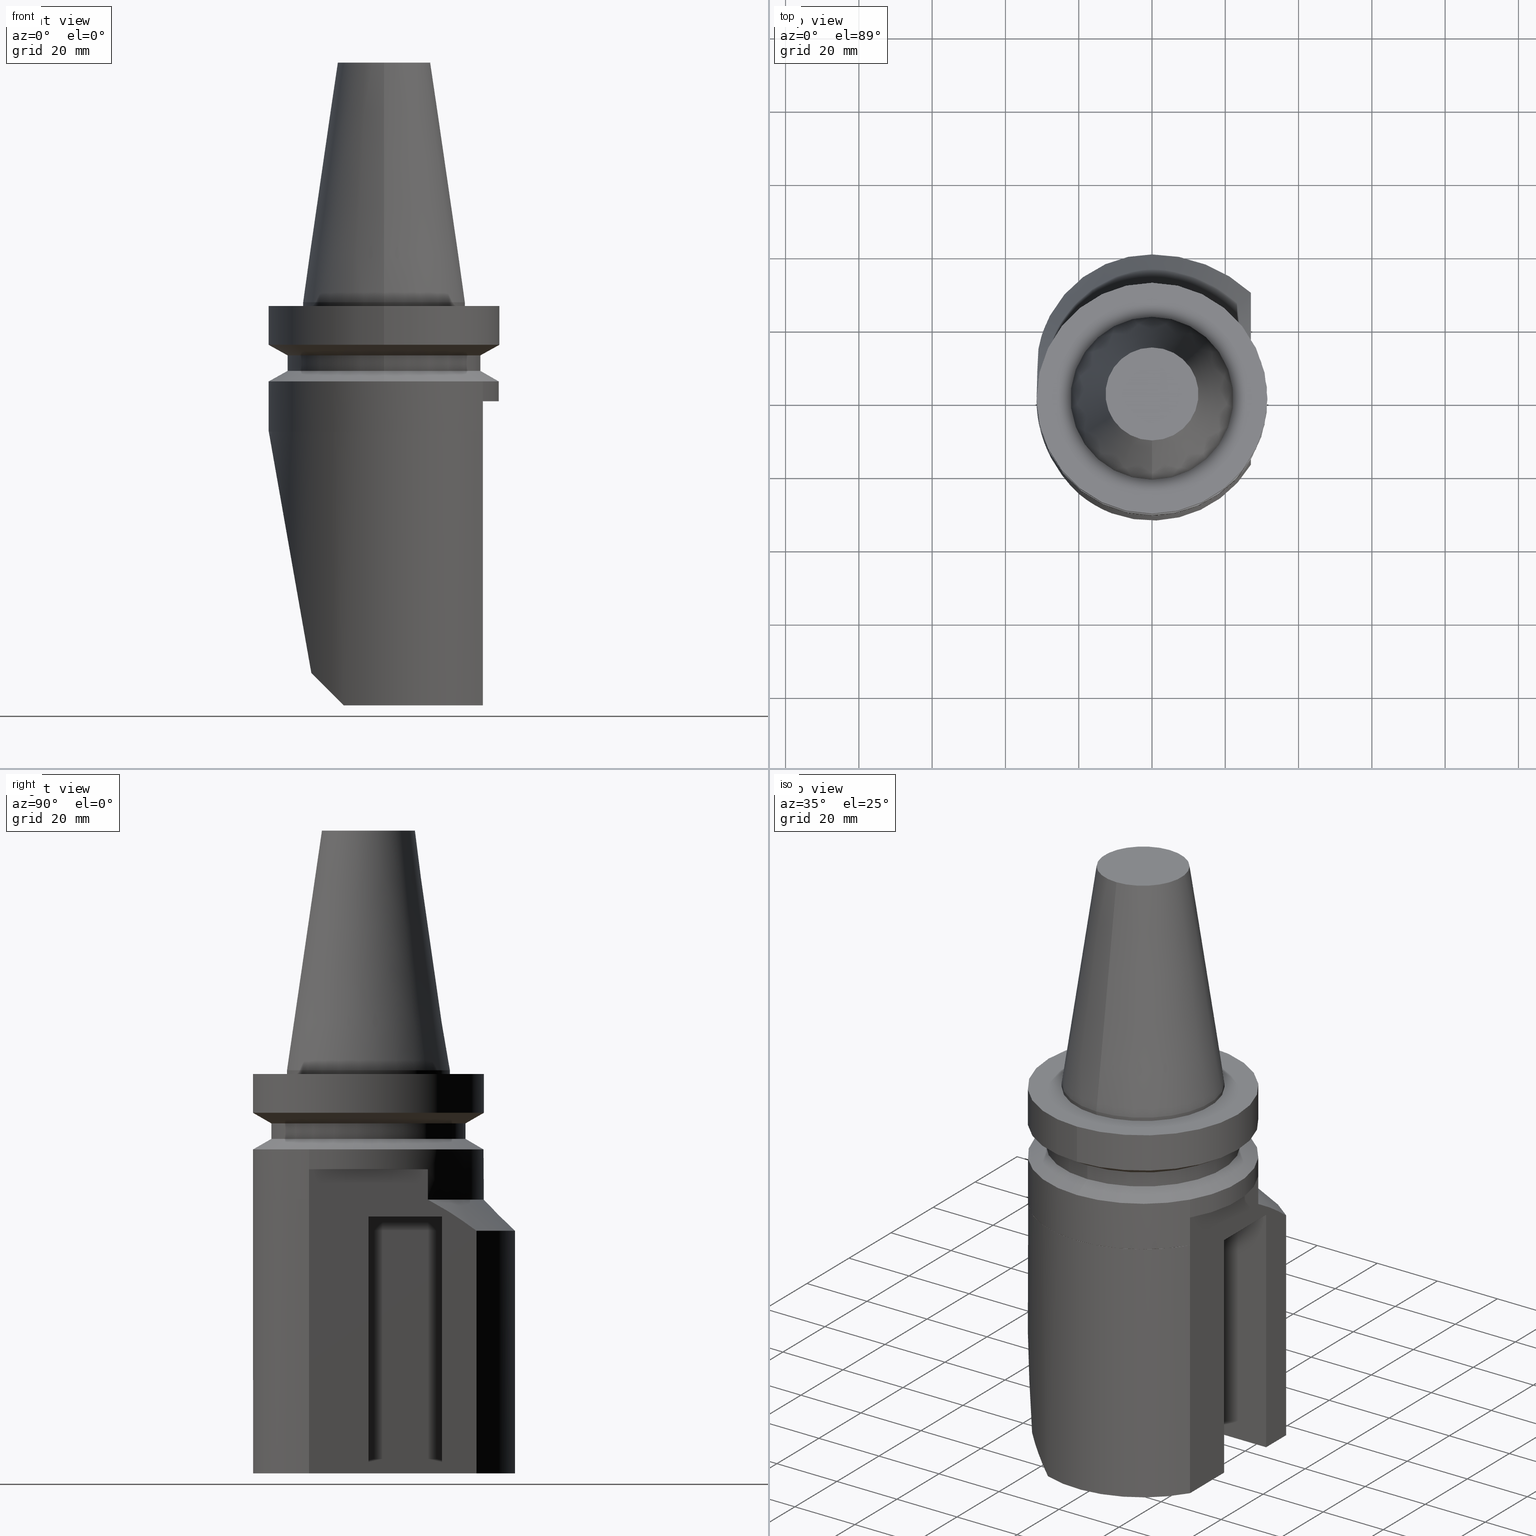
[diagram: canonical four-view strip — front | top / right | iso, engineering-drawing reading convention]
A machine part, canonical four-view strip (front | top / right | iso — engineering-drawing reading convention). The complete STEP part file that produces these views, byte-faithful:
ISO-10303-21;
HEADER;
FILE_DESCRIPTION((''),'1');
FILE_NAME('T:/21_DXF\X2\30C730FC30BF4F5C621057FA6E96\X0\/BBT40M-180-BH20R-110.stp','2017-05-02T05:46:58',(''),(''),'Spatial Interop R21 SP3','Kubotek KeyCreator 2011 V10.0.2 (22737)',' ');
FILE_SCHEMA(('automotive_design'));
ENDSEC;
DATA;
#1=MECHANICAL_DESIGN_GEOMETRIC_PRESENTATION_REPRESENTATION(' ',(#10,#11,#12,#13,#14,#15,#16,#17,#18,#19,#20,#21,#22,#23,#24,#25,#26,#27,#28,#29,#30,#31,#32,#33,#34,#35,#36,#37,#38,#39,#40,#41,#42,#43,#44,#45,#46,#47,#48,#49,#50,#51,#52,#53,#54,#55,#56,#57,#58,#59,#60,#61,#62,#63,#64,#65,#66,#67,#68,#69,#70,#71,#72,#73,#74,#75,#76,#77,#78,#79,#80,#81,#82),#6);
#2=PRODUCT_DEFINITION_CONTEXT('',#83,'design');
#3=APPLICATION_PROTOCOL_DEFINITION('INTERNATIONAL STANDARD','automotive_design',1994,#83);
#4=PRODUCT_CATEGORY_RELATIONSHIP('NONE','NONE',#84,#85);
#5=SHAPE_DEFINITION_REPRESENTATION(#86,#87);
#6= (GEOMETRIC_REPRESENTATION_CONTEXT(3)GLOBAL_UNCERTAINTY_ASSIGNED_CONTEXT((#90))GLOBAL_UNIT_ASSIGNED_CONTEXT((#92,#93,#94))REPRESENTATION_CONTEXT('NONE','WORKSPACE'));
#10=STYLED_ITEM('',(#96),#97);
#11=STYLED_ITEM('',(#98),#99);
#12=STYLED_ITEM('',(#100),#101);
#13=STYLED_ITEM('',(#102,#103),#104);
#14=STYLED_ITEM('',(#105),#106);
#15=STYLED_ITEM('',(#107,#108),#109);
#16=STYLED_ITEM('',(#110),#111);
#17=STYLED_ITEM('',(#112),#113);
#18=STYLED_ITEM('',(#114),#115);
#19=STYLED_ITEM('',(#116,#117),#118);
#20=STYLED_ITEM('',(#119,#120),#121);
#21=STYLED_ITEM('',(#122),#123);
#22=STYLED_ITEM('',(#124,#125),#126);
#23=STYLED_ITEM('',(#127),#128);
#24=STYLED_ITEM('',(#129),#130);
#25=STYLED_ITEM('',(#131),#132);
#26=STYLED_ITEM('',(#133),#134);
#27=STYLED_ITEM('',(#135),#136);
#28=STYLED_ITEM('',(#137),#138);
#29=STYLED_ITEM('',(#139),#140);
#30=STYLED_ITEM('',(#141,#142),#143);
#31=STYLED_ITEM('',(#144),#145);
#32=STYLED_ITEM('',(#146),#147);
#33=STYLED_ITEM('',(#148,#149),#150);
#34=STYLED_ITEM('',(#151),#152);
#35=STYLED_ITEM('',(#153),#154);
#36=STYLED_ITEM('',(#155),#156);
#37=STYLED_ITEM('',(#157),#158);
#38=STYLED_ITEM('',(#159),#160);
#39=STYLED_ITEM('',(#161),#162);
#40=STYLED_ITEM('',(#163),#164);
#41=STYLED_ITEM('',(#165,#166),#167);
#42=STYLED_ITEM('',(#168,#169),#170);
#43=STYLED_ITEM('',(#171),#172);
#44=STYLED_ITEM('',(#173),#174);
#45=STYLED_ITEM('',(#175),#176);
#46=STYLED_ITEM('',(#177),#178);
#47=STYLED_ITEM('',(#179,#180),#181);
#48=STYLED_ITEM('',(#182,#183),#184);
#49=STYLED_ITEM('',(#185,#186),#187);
#50=STYLED_ITEM('',(#188,#189),#190);
#51=STYLED_ITEM('',(#191),#192);
#52=STYLED_ITEM('',(#193),#194);
#53=STYLED_ITEM('',(#195),#196);
#54=STYLED_ITEM('',(#197),#198);
#55=STYLED_ITEM('',(#199,#200),#201);
#56=STYLED_ITEM('',(#202),#203);
#57=STYLED_ITEM('',(#204),#205);
#58=STYLED_ITEM('',(#206,#207),#208);
#59=STYLED_ITEM('',(#209,#210),#211);
#60=STYLED_ITEM('',(#212),#213);
#61=STYLED_ITEM('',(#214),#215);
#62=STYLED_ITEM('',(#216),#217);
#63=STYLED_ITEM('',(#218,#219),#220);
#64=STYLED_ITEM('',(#221),#222);
#65=STYLED_ITEM('',(#223),#224);
#66=STYLED_ITEM('',(#225),#226);
#67=STYLED_ITEM('',(#227),#228);
#68=STYLED_ITEM('',(#229),#230);
#69=STYLED_ITEM('',(#231),#232);
#70=STYLED_ITEM('',(#233),#234);
#71=STYLED_ITEM('',(#235),#236);
#72=STYLED_ITEM('',(#237,#238),#239);
#73=STYLED_ITEM('',(#240,#241),#242);
#74=STYLED_ITEM('',(#243,#244),#245);
#75=STYLED_ITEM('',(#246),#247);
#76=STYLED_ITEM('',(#248,#249),#250);
#77=STYLED_ITEM('',(#251),#252);
#78=STYLED_ITEM('',(#253,#254),#255);
#79=STYLED_ITEM('',(#256),#257);
#80=STYLED_ITEM('',(#258,#259),#260);
#81=STYLED_ITEM('',(#261),#262);
#82=STYLED_ITEM('',(#263,#264),#265);
#83=APPLICATION_CONTEXT(' ');
#84=PRODUCT_CATEGORY('part','NONE');
#85=PRODUCT_RELATED_PRODUCT_CATEGORY('detail',' ',(#266));
#86=PRODUCT_DEFINITION_SHAPE('NONE','NONE',#267);
#87=ADVANCED_BREP_SHAPE_REPRESENTATION('Unnamed[1]',(#181,#268),#6);
#90=UNCERTAINTY_MEASURE_WITH_UNIT(LENGTH_MEASURE(1.0E-006),#92,'','');
#92= (CONVERSION_BASED_UNIT('MILLIMETRE',#271)LENGTH_UNIT()NAMED_UNIT(#274));
#93= (NAMED_UNIT(#276)PLANE_ANGLE_UNIT()SI_UNIT($,.RADIAN.));
#94= (NAMED_UNIT(#276)SOLID_ANGLE_UNIT()SI_UNIT($,.STERADIAN.));
#96=PRESENTATION_STYLE_ASSIGNMENT((#282));
#97=EDGE_CURVE('Unnamed[1]',#283,#284,#285,.T.);
#98=PRESENTATION_STYLE_ASSIGNMENT((#286));
#99=EDGE_CURVE('Unnamed[1]',#287,#288,#289,.T.);
#100=PRESENTATION_STYLE_ASSIGNMENT((#290));
#101=EDGE_CURVE('Unnamed[1]',#291,#292,#293,.T.);
#102=PRESENTATION_STYLE_ASSIGNMENT((#294));
#103=PRESENTATION_STYLE_ASSIGNMENT((#295));
#104=ADVANCED_FACE('Unnamed[1]',(#296),#297,.T.);
#105=PRESENTATION_STYLE_ASSIGNMENT((#298));
#106=EDGE_CURVE('Unnamed[1]',#299,#300,#301,.T.);
#107=PRESENTATION_STYLE_ASSIGNMENT((#302));
#108=PRESENTATION_STYLE_ASSIGNMENT((#303));
#109=ADVANCED_FACE('Unnamed[1]',(#304,#305),#306,.T.);
#110=PRESENTATION_STYLE_ASSIGNMENT((#307));
#111=EDGE_CURVE('Unnamed[1]',#308,#309,#310,.T.);
#112=PRESENTATION_STYLE_ASSIGNMENT((#311));
#113=EDGE_CURVE('Unnamed[1]',#312,#313,#314,.T.);
#114=PRESENTATION_STYLE_ASSIGNMENT((#315));
#115=EDGE_CURVE('Unnamed[1]',#316,#316,#317,.T.);
#116=PRESENTATION_STYLE_ASSIGNMENT((#318));
#117=PRESENTATION_STYLE_ASSIGNMENT((#319));
#118=ADVANCED_FACE('Unnamed[1]',(#320),#321,.F.);
#119=PRESENTATION_STYLE_ASSIGNMENT((#322));
#120=PRESENTATION_STYLE_ASSIGNMENT((#323));
#121=ADVANCED_FACE('Unnamed[1]',(#324),#325,.T.);
#122=PRESENTATION_STYLE_ASSIGNMENT((#326));
#123=EDGE_CURVE('Unnamed[1]',#327,#328,#329,.T.);
#124=PRESENTATION_STYLE_ASSIGNMENT((#330));
#125=PRESENTATION_STYLE_ASSIGNMENT((#331));
#126=ADVANCED_FACE('Unnamed[1]',(#332,#333),#334,.T.);
#127=PRESENTATION_STYLE_ASSIGNMENT((#335));
#128=EDGE_CURVE('Unnamed[1]',#300,#336,#337,.T.);
#129=PRESENTATION_STYLE_ASSIGNMENT((#338));
#130=EDGE_CURVE('Unnamed[1]',#288,#339,#340,.T.);
#131=PRESENTATION_STYLE_ASSIGNMENT((#341));
#132=EDGE_CURVE('Unnamed[1]',#313,#342,#343,.T.);
#133=PRESENTATION_STYLE_ASSIGNMENT((#344));
#134=EDGE_CURVE('Unnamed[1]',#300,#299,#345,.T.);
#135=PRESENTATION_STYLE_ASSIGNMENT((#346));
#136=EDGE_CURVE('Unnamed[1]',#347,#327,#348,.T.);
#137=PRESENTATION_STYLE_ASSIGNMENT((#349));
#138=EDGE_CURVE('Unnamed[1]',#339,#347,#350,.T.);
#139=PRESENTATION_STYLE_ASSIGNMENT((#351));
#140=EDGE_CURVE('Unnamed[1]',#352,#352,#353,.T.);
#141=PRESENTATION_STYLE_ASSIGNMENT((#354));
#142=PRESENTATION_STYLE_ASSIGNMENT((#355));
#143=ADVANCED_FACE('Unnamed[1]',(#356),#357,.F.);
#144=PRESENTATION_STYLE_ASSIGNMENT((#358));
#145=EDGE_CURVE('Unnamed[1]',#284,#359,#360,.T.);
#146=PRESENTATION_STYLE_ASSIGNMENT((#361));
#147=EDGE_CURVE('Unnamed[1]',#287,#291,#362,.T.);
#148=PRESENTATION_STYLE_ASSIGNMENT((#363));
#149=PRESENTATION_STYLE_ASSIGNMENT((#364));
#150=ADVANCED_FACE('Unnamed[1]',(#365),#366,.F.);
#151=PRESENTATION_STYLE_ASSIGNMENT((#367));
#152=EDGE_CURVE('Unnamed[1]',#328,#287,#368,.T.);
#153=PRESENTATION_STYLE_ASSIGNMENT((#369));
#154=EDGE_CURVE('Unnamed[1]',#370,#370,#371,.T.);
#155=PRESENTATION_STYLE_ASSIGNMENT((#372));
#156=EDGE_CURVE('Unnamed[1]',#312,#336,#373,.T.);
#157=PRESENTATION_STYLE_ASSIGNMENT((#374));
#158=EDGE_CURVE('Unnamed[1]',#375,#313,#376,.T.);
#159=PRESENTATION_STYLE_ASSIGNMENT((#377));
#160=EDGE_CURVE('Unnamed[1]',#359,#378,#379,.T.);
#161=PRESENTATION_STYLE_ASSIGNMENT((#380));
#162=EDGE_CURVE('Unnamed[1]',#381,#382,#383,.T.);
#163=PRESENTATION_STYLE_ASSIGNMENT((#384));
#164=EDGE_CURVE('Unnamed[1]',#328,#339,#385,.T.);
#165=PRESENTATION_STYLE_ASSIGNMENT((#386));
#166=PRESENTATION_STYLE_ASSIGNMENT((#387));
#167=ADVANCED_FACE('Unnamed[1]',(#388),#389,.F.);
#168=PRESENTATION_STYLE_ASSIGNMENT((#390));
#169=PRESENTATION_STYLE_ASSIGNMENT((#391));
#170=ADVANCED_FACE('Unnamed[1]',(#392,#393),#394,.T.);
#171=PRESENTATION_STYLE_ASSIGNMENT((#395));
#172=EDGE_CURVE('Unnamed[1]',#342,#308,#396,.T.);
#173=PRESENTATION_STYLE_ASSIGNMENT((#397));
#174=EDGE_CURVE('Unnamed[1]',#398,#398,#399,.T.);
#175=PRESENTATION_STYLE_ASSIGNMENT((#400));
#176=EDGE_CURVE('Unnamed[1]',#336,#401,#402,.T.);
#177=PRESENTATION_STYLE_ASSIGNMENT((#403));
#178=EDGE_CURVE('Unnamed[1]',#359,#404,#405,.T.);
#179=PRESENTATION_STYLE_ASSIGNMENT((#406));
#180=PRESENTATION_STYLE_ASSIGNMENT((#407));
#181=MANIFOLD_SOLID_BREP('Unnamed[1]',#408);
#182=PRESENTATION_STYLE_ASSIGNMENT((#409));
#183=PRESENTATION_STYLE_ASSIGNMENT((#410));
#184=ADVANCED_FACE('Unnamed[1]',(#411),#412,.T.);
#185=PRESENTATION_STYLE_ASSIGNMENT((#413));
#186=PRESENTATION_STYLE_ASSIGNMENT((#414));
#187=ADVANCED_FACE('Unnamed[1]',(#415,#416),#417,.T.);
#188=PRESENTATION_STYLE_ASSIGNMENT((#418));
#189=PRESENTATION_STYLE_ASSIGNMENT((#419));
#190=ADVANCED_FACE('Unnamed[1]',(#420),#421,.F.);
#191=PRESENTATION_STYLE_ASSIGNMENT((#422));
#192=EDGE_CURVE('Unnamed[1]',#309,#292,#423,.T.);
#193=PRESENTATION_STYLE_ASSIGNMENT((#424));
#194=EDGE_CURVE('Unnamed[1]',#425,#425,#426,.T.);
#195=PRESENTATION_STYLE_ASSIGNMENT((#427));
#196=EDGE_CURVE('Unnamed[1]',#299,#375,#428,.T.);
#197=PRESENTATION_STYLE_ASSIGNMENT((#429));
#198=EDGE_CURVE('Unnamed[1]',#430,#381,#431,.T.);
#199=PRESENTATION_STYLE_ASSIGNMENT((#432));
#200=PRESENTATION_STYLE_ASSIGNMENT((#433));
#201=ADVANCED_FACE('Unnamed[1]',(#434),#435,.T.);
#202=PRESENTATION_STYLE_ASSIGNMENT((#436));
#203=EDGE_CURVE('Unnamed[1]',#378,#381,#437,.T.);
#204=PRESENTATION_STYLE_ASSIGNMENT((#438));
#205=EDGE_CURVE('Unnamed[1]',#283,#404,#439,.T.);
#206=PRESENTATION_STYLE_ASSIGNMENT((#440));
#207=PRESENTATION_STYLE_ASSIGNMENT((#441));
#208=ADVANCED_FACE('Unnamed[1]',(#442,#443),#444,.T.);
#209=PRESENTATION_STYLE_ASSIGNMENT((#445));
#210=PRESENTATION_STYLE_ASSIGNMENT((#446));
#211=ADVANCED_FACE('Unnamed[1]',(#447),#448,.T.);
#212=PRESENTATION_STYLE_ASSIGNMENT((#449));
#213=EDGE_CURVE('Unnamed[1]',#450,#450,#451,.T.);
#214=PRESENTATION_STYLE_ASSIGNMENT((#452));
#215=EDGE_CURVE('Unnamed[1]',#378,#453,#454,.T.);
#216=PRESENTATION_STYLE_ASSIGNMENT((#455));
#217=EDGE_CURVE('Unnamed[1]',#456,#456,#457,.T.);
#218=PRESENTATION_STYLE_ASSIGNMENT((#458));
#219=PRESENTATION_STYLE_ASSIGNMENT((#459));
#220=ADVANCED_FACE('Unnamed[1]',(#460,#461),#462,.T.);
#221=PRESENTATION_STYLE_ASSIGNMENT((#463));
#222=EDGE_CURVE('Unnamed[1]',#291,#464,#465,.T.);
#223=PRESENTATION_STYLE_ASSIGNMENT((#466));
#224=EDGE_CURVE('Unnamed[1]',#401,#430,#467,.T.);
#225=PRESENTATION_STYLE_ASSIGNMENT((#468));
#226=EDGE_CURVE('Unnamed[1]',#464,#288,#469,.T.);
#227=PRESENTATION_STYLE_ASSIGNMENT((#470));
#228=EDGE_CURVE('Unnamed[1]',#404,#382,#471,.T.);
#229=PRESENTATION_STYLE_ASSIGNMENT((#472));
#230=EDGE_CURVE('Unnamed[1]',#473,#473,#474,.T.);
#231=PRESENTATION_STYLE_ASSIGNMENT((#475));
#232=EDGE_CURVE('Unnamed[1]',#309,#375,#476,.T.);
#233=PRESENTATION_STYLE_ASSIGNMENT((#477));
#234=EDGE_CURVE('Unnamed[1]',#453,#430,#478,.T.);
#235=PRESENTATION_STYLE_ASSIGNMENT((#479));
#236=EDGE_CURVE('Unnamed[1]',#464,#347,#480,.T.);
#237=PRESENTATION_STYLE_ASSIGNMENT((#481));
#238=PRESENTATION_STYLE_ASSIGNMENT((#482));
#239=ADVANCED_FACE('Unnamed[1]',(#483),#484,.T.);
#240=PRESENTATION_STYLE_ASSIGNMENT((#485));
#241=PRESENTATION_STYLE_ASSIGNMENT((#486));
#242=ADVANCED_FACE('Unnamed[1]',(#487),#488,.F.);
#243=PRESENTATION_STYLE_ASSIGNMENT((#489));
#244=PRESENTATION_STYLE_ASSIGNMENT((#490));
#245=ADVANCED_FACE('Unnamed[1]',(#491,#492),#493,.T.);
#246=PRESENTATION_STYLE_ASSIGNMENT((#494));
#247=EDGE_CURVE('Unnamed[1]',#382,#312,#495,.T.);
#248=PRESENTATION_STYLE_ASSIGNMENT((#496));
#249=PRESENTATION_STYLE_ASSIGNMENT((#497));
#250=ADVANCED_FACE('Unnamed[1]',(#498),#499,.T.);
#251=PRESENTATION_STYLE_ASSIGNMENT((#500));
#252=EDGE_CURVE('Unnamed[1]',#292,#284,#501,.T.);
#253=PRESENTATION_STYLE_ASSIGNMENT((#502));
#254=PRESENTATION_STYLE_ASSIGNMENT((#503));
#255=ADVANCED_FACE('Unnamed[1]',(#504),#505,.T.);
#256=PRESENTATION_STYLE_ASSIGNMENT((#506));
#257=EDGE_CURVE('Unnamed[1]',#453,#327,#507,.T.);
#258=PRESENTATION_STYLE_ASSIGNMENT((#508));
#259=PRESENTATION_STYLE_ASSIGNMENT((#509));
#260=ADVANCED_FACE('Unnamed[1]',(#510),#511,.T.);
#261=PRESENTATION_STYLE_ASSIGNMENT((#512));
#262=EDGE_CURVE('Unnamed[1]',#342,#283,#513,.T.);
#263=PRESENTATION_STYLE_ASSIGNMENT((#514));
#264=PRESENTATION_STYLE_ASSIGNMENT((#515));
#265=ADVANCED_FACE('Unnamed[1]',(#516,#517),#518,.T.);
#266=PRODUCT('Unnamed[1]','Unnamed[1]','PART-Unnamed[1]-DESC',(#519));
#267=PRODUCT_DEFINITION('NONE','NONE',#520,#2);
#268=AXIS2_PLACEMENT_3D('',#521,#522,#523);
#271=LENGTH_MEASURE_WITH_UNIT(LENGTH_MEASURE(1.0),#524);
#274=DIMENSIONAL_EXPONENTS(1.0,0.0,0.0,0.0,0.0,0.0,0.0);
#276=DIMENSIONAL_EXPONENTS(0.0,0.0,0.0,0.0,0.0,0.0,0.0);
#282=CURVE_STYLE('',#525,POSITIVE_LENGTH_MEASURE(1000.0),#526);
#283=VERTEX_POINT('',#527);
#284=VERTEX_POINT('',#528);
#285=ELLIPSE('',#529,44.5477272147525,31.5);
#286=CURVE_STYLE('',#530,POSITIVE_LENGTH_MEASURE(1000.0),#531);
#287=VERTEX_POINT('',#532);
#288=VERTEX_POINT('',#533);
#289=LINE('',#534,#535);
#290=CURVE_STYLE('',#536,POSITIVE_LENGTH_MEASURE(1000.0),#537);
#291=VERTEX_POINT('',#538);
#292=VERTEX_POINT('',#539);
#293=LINE('',#540,#541);
#294=SURFACE_STYLE_USAGE(.BOTH.,#542);
#295=CURVE_STYLE('',#543,POSITIVE_LENGTH_MEASURE(1000.0),#544);
#296=FACE_OUTER_BOUND('',#545,.T.);
#297=PLANE('',#546);
#298=CURVE_STYLE('',#547,POSITIVE_LENGTH_MEASURE(1000.0),#548);
#299=VERTEX_POINT('',#549);
#300=VERTEX_POINT('',#550);
#301=CIRCLE('',#551,31.5000000000001);
#302=SURFACE_STYLE_USAGE(.BOTH.,#552);
#303=CURVE_STYLE('',#553,POSITIVE_LENGTH_MEASURE(1000.0),#554);
#304=FACE_BOUND('',#555,.T.);
#305=FACE_BOUND('',#556,.T.);
#306=CYLINDRICAL_SURFACE('',#557,31.5000000000001);
#307=CURVE_STYLE('',#558,POSITIVE_LENGTH_MEASURE(1000.0),#559);
#308=VERTEX_POINT('',#560);
#309=VERTEX_POINT('',#561);
#310=B_SPLINE_CURVE_WITH_KNOTS('',3,(#562,#563,#564,#565,#566,#567),.UNSPECIFIED.,.F.,.F.,(4,2,4),(27.641459699975,39.5297183572556,47.7729431097984),.UNSPECIFIED.);
#311=CURVE_STYLE('',#568,POSITIVE_LENGTH_MEASURE(1000.0),#569);
#312=VERTEX_POINT('',#570);
#313=VERTEX_POINT('',#571);
#314=ELLIPSE('',#572,181.401270219024,31.4999999999999);
#315=CURVE_STYLE('',#573,POSITIVE_LENGTH_MEASURE(1000.0),#574);
#316=VERTEX_POINT('',#575);
#317=CIRCLE('',#576,22.2250000000001);
#318=SURFACE_STYLE_USAGE(.BOTH.,#577);
#319=CURVE_STYLE('',#578,POSITIVE_LENGTH_MEASURE(1000.0),#579);
#320=FACE_OUTER_BOUND('',#580,.T.);
#321=PLANE('',#581);
#322=SURFACE_STYLE_USAGE(.BOTH.,#582);
#323=CURVE_STYLE('',#583,POSITIVE_LENGTH_MEASURE(1000.0),#584);
#324=FACE_OUTER_BOUND('',#585,.T.);
#325=PLANE('',#586);
#326=CURVE_STYLE('',#587,POSITIVE_LENGTH_MEASURE(1000.0),#588);
#327=VERTEX_POINT('',#589);
#328=VERTEX_POINT('',#590);
#329=LINE('',#591,#592);
#330=SURFACE_STYLE_USAGE(.BOTH.,#593);
#331=CURVE_STYLE('',#594,POSITIVE_LENGTH_MEASURE(1000.0),#595);
#332=FACE_BOUND('',#596,.T.);
#333=FACE_BOUND('',#597,.T.);
#334=CONICAL_SURFACE('',#598,29.0000000000001,1.0471975511966);
#335=CURVE_STYLE('',#599,POSITIVE_LENGTH_MEASURE(1000.0),#600);
#336=VERTEX_POINT('',#601);
#337=LINE('',#602,#603);
#338=CURVE_STYLE('',#604,POSITIVE_LENGTH_MEASURE(1000.0),#605);
#339=VERTEX_POINT('',#606);
#340=LINE('',#607,#608);
#341=CURVE_STYLE('',#609,POSITIVE_LENGTH_MEASURE(1000.0),#610);
#342=VERTEX_POINT('',#611);
#343=(B_SPLINE_CURVE(2,(#613,#614,#615),.UNSPECIFIED.,.F.,.F.)B_SPLINE_CURVE_WITH_KNOTS((3,3),(0.00435297726950075,0.00839065039057429),.UNSPECIFIED.)RATIONAL_B_SPLINE_CURVE((1.00000005430238,1.0000000779393,1.00000009870521))BOUNDED_CURVE()REPRESENTATION_ITEM('')GEOMETRIC_REPRESENTATION_ITEM()CURVE());
#344=CURVE_STYLE('',#622,POSITIVE_LENGTH_MEASURE(1000.0),#623);
#345=LINE('',#624,#625);
#346=CURVE_STYLE('',#626,POSITIVE_LENGTH_MEASURE(1000.0),#627);
#347=VERTEX_POINT('',#628);
#348=LINE('',#629,#630);
#349=CURVE_STYLE('',#631,POSITIVE_LENGTH_MEASURE(1000.0),#632);
#350=LINE('',#633,#634);
#351=CURVE_STYLE('',#635,POSITIVE_LENGTH_MEASURE(1000.0),#636);
#352=VERTEX_POINT('',#637);
#353=CIRCLE('',#638,26.5000000000001);
#354=SURFACE_STYLE_USAGE(.BOTH.,#639);
#355=CURVE_STYLE('',#640,POSITIVE_LENGTH_MEASURE(1000.0),#641);
#356=FACE_OUTER_BOUND('',#642,.T.);
#357=PLANE('',#643);
#358=CURVE_STYLE('',#644,POSITIVE_LENGTH_MEASURE(1000.0),#645);
#359=VERTEX_POINT('',#646);
#360=LINE('',#647,#648);
#361=CURVE_STYLE('',#649,POSITIVE_LENGTH_MEASURE(1000.0),#650);
#362=LINE('',#651,#652);
#363=SURFACE_STYLE_USAGE(.BOTH.,#653);
#364=CURVE_STYLE('',#654,POSITIVE_LENGTH_MEASURE(1000.0),#655);
#365=FACE_OUTER_BOUND('',#656,.T.);
#366=PLANE('',#657);
#367=CURVE_STYLE('',#658,POSITIVE_LENGTH_MEASURE(1000.0),#659);
#368=LINE('',#660,#661);
#369=CURVE_STYLE('',#662,POSITIVE_LENGTH_MEASURE(1000.0),#663);
#370=VERTEX_POINT('',#664);
#371=CIRCLE('',#665,31.5000000000001);
#372=CURVE_STYLE('',#666,POSITIVE_LENGTH_MEASURE(1000.0),#667);
#373=CIRCLE('',#668,31.4999999999998);
#374=CURVE_STYLE('',#669,POSITIVE_LENGTH_MEASURE(1000.0),#670);
#375=VERTEX_POINT('',#671);
#376=CIRCLE('',#672,31.4999999999998);
#377=CURVE_STYLE('',#673,POSITIVE_LENGTH_MEASURE(1000.0),#674);
#378=VERTEX_POINT('',#675);
#379=CIRCLE('',#676,31.5);
#380=CURVE_STYLE('',#677,POSITIVE_LENGTH_MEASURE(1000.0),#678);
#381=VERTEX_POINT('',#679);
#382=VERTEX_POINT('',#680);
#383=B_SPLINE_CURVE_WITH_KNOTS('',3,(#681,#682,#683,#684,#685,#686,#687,#688,#689,#690,#691,#692,#693,#694,#695,#696,#697,#698,#699,#700,#701,#702,#703,#704,#705,#706),.UNSPECIFIED.,.F.,.F.,(4,2,2,2,2,2,2,2,2,2,2,2,4),(56.5149822981755,60.205563349657,63.8961444011385,67.58672545262,71.2773065041014,74.9678875555829,78.6584686070644,82.3490496585459,86.0396307100274,89.4134224458179,92.7872141816083,96.1610059173987,99.4823360046446),.UNSPECIFIED.);
#384=CURVE_STYLE('',#707,POSITIVE_LENGTH_MEASURE(1000.0),#708);
#385=LINE('',#709,#710);
#386=SURFACE_STYLE_USAGE(.BOTH.,#711);
#387=CURVE_STYLE('',#712,POSITIVE_LENGTH_MEASURE(1000.0),#713);
#388=FACE_OUTER_BOUND('',#714,.T.);
#389=PLANE('',#715);
#390=SURFACE_STYLE_USAGE(.BOTH.,#716);
#391=CURVE_STYLE('',#717,POSITIVE_LENGTH_MEASURE(1000.0),#718);
#392=FACE_BOUND('',#719,.T.);
#393=FACE_OUTER_BOUND('',#720,.T.);
#394=PLANE('',#721);
#395=CURVE_STYLE('',#722,POSITIVE_LENGTH_MEASURE(1000.0),#723);
#396=B_SPLINE_CURVE_WITH_KNOTS('',3,(#724,#725,#726,#727,#728,#729,#730,#731,#732,#733,#734,#735,#736,#737,#738,#739,#740,#741,#742,#743,#744,#745,#746,#747,#748,#749,#750,#751,#752,#753,#754,#755,#756,#757,#758,#759,#760,#761,#762,#763,#764,#765,#766,#767,#768,#769,#770,#771,#772,#773,#774,#775,#776,#777,#778),.UNSPECIFIED.,.F.,.F.,(4,2,2,2,2,2,2,2,2,2,2,2,2,2,2,2,3,2,2,2,2,2,2,2,2,2,4),(-45.6538737258986,-44.499432136514,-41.5328983623418,-38.5663645881696,-35.5998308139974,-32.6332970398252,-29.6667632656529,-26.7002294914807,-23.7336957173085,-20.766983752645,-17.8002717879814,-14.8335598233178,-11.8668478586543,-8.90013589399069,-5.93342392932715,-2.96671196466357,0.0,2.96671196466355,5.93342392932711,8.90013589399067,11.8668478586542,14.8335598233178,17.8002717879813,20.7669837526449,23.7336957173084,26.7002294914806,27.641459699975),.UNSPECIFIED.);
#397=CURVE_STYLE('',#779,POSITIVE_LENGTH_MEASURE(1000.0),#780);
#398=VERTEX_POINT('',#781);
#399=CIRCLE('',#782,31.5000000000001);
#400=CURVE_STYLE('',#783,POSITIVE_LENGTH_MEASURE(1000.0),#784);
#401=VERTEX_POINT('',#785);
#402=(B_SPLINE_CURVE(3,(#787,#788,#789,#790,#791,#792,#793),.UNSPECIFIED.,.F.,.F.)B_SPLINE_CURVE_WITH_KNOTS((4,3,4),(0.0,10.5278552512868,16.0041699790328),.UNSPECIFIED.)RATIONAL_B_SPLINE_CURVE((1.0,1.00788251809051,1.01050813068556,1.00787683778514,1.00787683778514,1.00787683778514,1.00787683778514))BOUNDED_CURVE()REPRESENTATION_ITEM('')GEOMETRIC_REPRESENTATION_ITEM()CURVE());
#403=CURVE_STYLE('',#800,POSITIVE_LENGTH_MEASURE(1000.0),#801);
#404=VERTEX_POINT('',#802);
#405=ELLIPSE('',#803,44.5477272147525,31.5);
#406=SURFACE_STYLE_USAGE(.BOTH.,#804);
#407=CURVE_STYLE('',#805,POSITIVE_LENGTH_MEASURE(1000.0),#806);
#408=CLOSED_SHELL('',(#260,#167,#239,#265,#211,#121,#242,#143,#245,#150,#250,#118,#190,#184,#255,#201,#104,#220,#187,#170,#109,#208,#126));
#409=SURFACE_STYLE_USAGE(.BOTH.,#807);
#410=CURVE_STYLE('',#808,POSITIVE_LENGTH_MEASURE(1000.0),#809);
#411=FACE_OUTER_BOUND('',#810,.T.);
#412=CYLINDRICAL_SURFACE('',#811,40.0);
#413=SURFACE_STYLE_USAGE(.BOTH.,#812);
#414=CURVE_STYLE('',#813,POSITIVE_LENGTH_MEASURE(1000.0),#814);
#415=FACE_BOUND('',#815,.T.);
#416=FACE_BOUND('',#816,.T.);
#417=CYLINDRICAL_SURFACE('',#817,22.2250000000001);
#418=SURFACE_STYLE_USAGE(.BOTH.,#818);
#419=CURVE_STYLE('',#819,POSITIVE_LENGTH_MEASURE(1000.0),#820);
#420=FACE_OUTER_BOUND('',#821,.T.);
#421=PLANE('',#822);
#422=CURVE_STYLE('',#823,POSITIVE_LENGTH_MEASURE(1000.0),#824);
#423=LINE('',#825,#826);
#424=CURVE_STYLE('',#827,POSITIVE_LENGTH_MEASURE(1000.0),#828);
#425=VERTEX_POINT('',#829);
#426=CIRCLE('',#830,26.5000000000001);
#427=CURVE_STYLE('',#831,POSITIVE_LENGTH_MEASURE(1000.0),#832);
#428=LINE('',#833,#834);
#429=CURVE_STYLE('',#835,POSITIVE_LENGTH_MEASURE(1000.0),#836);
#430=VERTEX_POINT('',#837);
#431=B_SPLINE_CURVE_WITH_KNOTS('',3,(#838,#839,#840,#841,#842,#843,#844,#845,#846,#847,#848,#849,#850,#851,#852,#853,#854,#855,#856,#857,#858,#859,#860,#861,#862),.UNSPECIFIED.,.F.,.F.,(4,3,3,3,3,3,3,3,4),(92.2282295796958,97.5359109906334,97.9403669288206,101.706929684714,105.473492440607,109.2400551965,113.006617952393,116.773180708287,120.53974346418),.UNSPECIFIED.);
#432=SURFACE_STYLE_USAGE(.BOTH.,#863);
#433=CURVE_STYLE('',#864,POSITIVE_LENGTH_MEASURE(1000.0),#865);
#434=FACE_OUTER_BOUND('',#866,.T.);
#435=CONICAL_SURFACE('',#867,35.7499999999976,0.785398163397449);
#436=CURVE_STYLE('',#868,POSITIVE_LENGTH_MEASURE(1000.0),#869);
#437=LINE('',#870,#871);
#438=CURVE_STYLE('',#872,POSITIVE_LENGTH_MEASURE(1000.0),#873);
#439=LINE('',#874,#875);
#440=SURFACE_STYLE_USAGE(.BOTH.,#876);
#441=CURVE_STYLE('',#877,POSITIVE_LENGTH_MEASURE(1000.0),#878);
#442=FACE_BOUND('',#879,.T.);
#443=FACE_BOUND('',#880,.T.);
#444=CYLINDRICAL_SURFACE('',#881,26.5000000000001);
#445=SURFACE_STYLE_USAGE(.BOTH.,#882);
#446=CURVE_STYLE('',#883,POSITIVE_LENGTH_MEASURE(1000.0),#884);
#447=FACE_OUTER_BOUND('',#885,.T.);
#448=CONICAL_SURFACE('',#886,35.7499999999976,0.785398163397449);
#449=CURVE_STYLE('',#887,POSITIVE_LENGTH_MEASURE(1000.0),#888);
#450=VERTEX_POINT('',#889);
#451=CIRCLE('',#890,31.5000000000001);
#452=CURVE_STYLE('',#891,POSITIVE_LENGTH_MEASURE(1000.0),#892);
#453=VERTEX_POINT('',#893);
#454=CIRCLE('',#894,40.0);
#455=CURVE_STYLE('',#895,POSITIVE_LENGTH_MEASURE(1000.0),#896);
#456=VERTEX_POINT('',#897);
#457=CIRCLE('',#898,22.2250000000001);
#458=SURFACE_STYLE_USAGE(.BOTH.,#899);
#459=CURVE_STYLE('',#900,POSITIVE_LENGTH_MEASURE(1000.0),#901);
#460=FACE_BOUND('',#902,.T.);
#461=FACE_BOUND('',#903,.T.);
#462=CONICAL_SURFACE('',#904,17.4562500000001,0.14481249823894);
#463=CURVE_STYLE('',#905,POSITIVE_LENGTH_MEASURE(1000.0),#906);
#464=VERTEX_POINT('',#907);
#465=LINE('',#908,#909);
#466=CURVE_STYLE('',#910,POSITIVE_LENGTH_MEASURE(1000.0),#911);
#467=(B_SPLINE_CURVE(3,(#913,#914,#915,#916,#917,#918,#919),.UNSPECIFIED.,.F.,.F.)B_SPLINE_CURVE_WITH_KNOTS((4,3,4),(0.0,10.5278552512868,16.0041699790328),.UNSPECIFIED.)RATIONAL_B_SPLINE_CURVE((1.0,1.00788251809051,1.01050813068556,1.00787683778514,1.00787683778514,1.00787683778514,1.00787683778514))BOUNDED_CURVE()REPRESENTATION_ITEM('')GEOMETRIC_REPRESENTATION_ITEM()CURVE());
#468=CURVE_STYLE('',#926,POSITIVE_LENGTH_MEASURE(1000.0),#927);
#469=LINE('',#928,#929);
#470=CURVE_STYLE('',#930,POSITIVE_LENGTH_MEASURE(1000.0),#931);
#471=ELLIPSE('',#932,181.401270219024,31.5);
#472=CURVE_STYLE('',#933,POSITIVE_LENGTH_MEASURE(1000.0),#934);
#473=VERTEX_POINT('',#935);
#474=CIRCLE('',#936,12.6875000000001);
#475=CURVE_STYLE('',#937,POSITIVE_LENGTH_MEASURE(1000.0),#938);
#476=LINE('',#939,#940);
#477=CURVE_STYLE('',#941,POSITIVE_LENGTH_MEASURE(1000.0),#942);
#478=LINE('',#943,#944);
#479=CURVE_STYLE('',#945,POSITIVE_LENGTH_MEASURE(1000.0),#946);
#480=LINE('',#947,#948);
#481=SURFACE_STYLE_USAGE(.BOTH.,#949);
#482=CURVE_STYLE('',#950,POSITIVE_LENGTH_MEASURE(1000.0),#951);
#483=FACE_OUTER_BOUND('',#952,.T.);
#484=CYLINDRICAL_SURFACE('',#953,31.5);
#485=SURFACE_STYLE_USAGE(.BOTH.,#954);
#486=CURVE_STYLE('',#955,POSITIVE_LENGTH_MEASURE(1000.0),#956);
#487=FACE_OUTER_BOUND('',#957,.T.);
#488=PLANE('',#958);
#489=SURFACE_STYLE_USAGE(.BOTH.,#959);
#490=CURVE_STYLE('',#960,POSITIVE_LENGTH_MEASURE(1000.0),#961);
#491=FACE_BOUND('',#962,.T.);
#492=FACE_BOUND('',#963,.T.);
#493=CONICAL_SURFACE('',#964,29.0000000000001,1.0471975511966);
#494=CURVE_STYLE('',#965,POSITIVE_LENGTH_MEASURE(1000.0),#966);
#495=(B_SPLINE_CURVE(2,(#968,#969,#970),.UNSPECIFIED.,.F.,.F.)B_SPLINE_CURVE_WITH_KNOTS((3,3),(12.5550375689328,26.3498536836853),.UNSPECIFIED.)RATIONAL_B_SPLINE_CURVE((1.02326668738829,1.02441545097016,1.0))BOUNDED_CURVE()REPRESENTATION_ITEM('')GEOMETRIC_REPRESENTATION_ITEM()CURVE());
#496=SURFACE_STYLE_USAGE(.BOTH.,#977);
#497=CURVE_STYLE('',#978,POSITIVE_LENGTH_MEASURE(1000.0),#979);
#498=FACE_OUTER_BOUND('',#980,.T.);
#499=PLANE('',#981);
#500=CURVE_STYLE('',#982,POSITIVE_LENGTH_MEASURE(1000.0),#983);
#501=CIRCLE('',#984,31.5);
#502=SURFACE_STYLE_USAGE(.BOTH.,#985);
#503=CURVE_STYLE('',#986,POSITIVE_LENGTH_MEASURE(1000.0),#987);
#504=FACE_OUTER_BOUND('',#988,.T.);
#505=CYLINDRICAL_SURFACE('',#989,31.5);
#506=CURVE_STYLE('',#990,POSITIVE_LENGTH_MEASURE(1000.0),#991);
#507=LINE('',#992,#993);
#508=SURFACE_STYLE_USAGE(.BOTH.,#994);
#509=CURVE_STYLE('',#995,POSITIVE_LENGTH_MEASURE(1000.0),#996);
#510=FACE_OUTER_BOUND('',#997,.T.);
#511=PLANE('',#998);
#512=CURVE_STYLE('',#999,POSITIVE_LENGTH_MEASURE(1000.0),#1000);
#513=ELLIPSE('',#1001,181.401270219024,31.5);
#514=SURFACE_STYLE_USAGE(.BOTH.,#1002);
#515=CURVE_STYLE('',#1003,POSITIVE_LENGTH_MEASURE(1000.0),#1004);
#516=FACE_BOUND('',#1005,.T.);
#517=FACE_BOUND('',#1006,.T.);
#518=CYLINDRICAL_SURFACE('',#1007,31.4999999999999);
#519=PRODUCT_CONTEXT('',#83,'mechanical');
#520=PRODUCT_DEFINITION_FORMATION_WITH_SPECIFIED_SOURCE(' ','NONE',#266,.NOT_KNOWN.);
#521=CARTESIAN_POINT('',(0.0,0.0,0.0));
#522=DIRECTION('',(0.0,0.0,1.0));
#523=DIRECTION('',(1.0,0.0,0.0));
#524= (NAMED_UNIT(#274)LENGTH_UNIT()SI_UNIT(.MILLI.,.METRE.));
#525=DRAUGHTING_PRE_DEFINED_CURVE_FONT('continuous');
#526=COLOUR_RGB('',0.0,1.0,0.0);
#527=CARTESIAN_POINT('',(-19.8329668162767,-24.4759316512502,-101.167033183723));
#528=CARTESIAN_POINT('',(-11.0,-29.5203724435283,-110.0));
#529=AXIS2_PLACEMENT_3D('',#1009,#1010,#1011);
#530=DRAUGHTING_PRE_DEFINED_CURVE_FONT('continuous');
#531=COLOUR_RGB('',0.0,1.0,0.0);
#532=CARTESIAN_POINT('',(7.00000000000006,-0.00342815723782018,-110.0));
#533=CARTESIAN_POINT('',(7.00000000000006,-0.00342815723782876,-39.9999999999999));
#534=CARTESIAN_POINT('',(7.00000000000007,-0.00342815723780022,-272.996571842762));
#535=VECTOR('',#1012,1.0);
#536=DRAUGHTING_PRE_DEFINED_CURVE_FONT('continuous');
#537=COLOUR_RGB('',0.0,1.0,0.0);
#538=CARTESIAN_POINT('',(27.0000000000001,-0.0034281572378115,-110.0));
#539=CARTESIAN_POINT('',(27.0000000000002,-16.2284088968249,-109.999999999997));
#540=CARTESIAN_POINT('',(27.0000000000001,-7.11272217673018,-109.999999999999));
#541=VECTOR('',#1013,1.0);
#542=SURFACE_SIDE_STYLE('',(#1014));
#543=DRAUGHTING_PRE_DEFINED_CURVE_FONT('continuous');
#544=COLOUR_RGB('',0.0,1.0,0.0);
#545=EDGE_LOOP('',(#1015));
#546=AXIS2_PLACEMENT_3D('',#1016,#1017,#1018);
#547=DRAUGHTING_PRE_DEFINED_CURVE_FONT('continuous');
#548=COLOUR_RGB('',0.0,1.0,0.0);
#549=CARTESIAN_POINT('',(27.0000000000001,-16.2249807395879,-26.9999999999999));
#550=CARTESIAN_POINT('',(27.0,16.2249807395881,-26.9999999999998));
#551=AXIS2_PLACEMENT_3D('',#1019,#1020,#1021);
#552=SURFACE_SIDE_STYLE('',(#1022));
#553=DRAUGHTING_PRE_DEFINED_CURVE_FONT('continuous');
#554=COLOUR_RGB('',0.0,1.0,0.0);
#555=EDGE_LOOP('',(#1023));
#556=EDGE_LOOP('',(#1024));
#557=AXIS2_PLACEMENT_3D('',#1025,#1026,#1027);
#558=DRAUGHTING_PRE_DEFINED_CURVE_FONT('continuous');
#559=COLOUR_RGB('',0.0,1.0,0.0);
#560=CARTESIAN_POINT('',(24.906976744186,-19.2879429155759,-35.3020988578543));
#561=CARTESIAN_POINT('',(26.9999999999996,-16.2284088968269,-35.3017659080035));
#562=CARTESIAN_POINT('',(24.906976744186,-19.2879429155759,-35.3020988578543));
#563=CARTESIAN_POINT('',(27.4203854984577,-16.0417417964001,-35.3017455960634));
#564=CARTESIAN_POINT('',(29.2726905213206,-12.3384333089556,-35.3013425842695));
#565=CARTESIAN_POINT('',(31.1198690333638,-5.64945220673828,-35.3006146409497));
#566=CARTESIAN_POINT('',(31.500153779142,-2.82817628460516,-35.3003076049813));
#567=CARTESIAN_POINT('',(31.4999999533498,-0.00171381908278173,-35.2999999999732));
#568=DRAUGHTING_PRE_DEFINED_CURVE_FONT('continuous');
#569=COLOUR_RGB('',0.0,1.0,0.0);
#570=CARTESIAN_POINT('',(-31.4471019057867,1.82476895169037,-35.3000000000013));
#571=CARTESIAN_POINT('',(-31.4471019057867,-1.82476895169037,-35.3000000000013));
#572=AXIS2_PLACEMENT_3D('',#1028,#1029,#1030);
#573=DRAUGHTING_PRE_DEFINED_CURVE_FONT('continuous');
#574=COLOUR_RGB('',0.0,1.0,0.0);
#575=CARTESIAN_POINT('',(6.12323399573601E-017,-22.2250000000001,-0.999999999999875));
#576=AXIS2_PLACEMENT_3D('',#1031,#1032,#1033);
#577=SURFACE_SIDE_STYLE('',(#1034));
#578=DRAUGHTING_PRE_DEFINED_CURVE_FONT('continuous');
#579=COLOUR_RGB('',0.0,1.0,0.0);
#580=EDGE_LOOP('',(#1035,#1036,#1037,#1038));
#581=AXIS2_PLACEMENT_3D('',#1039,#1040,#1041);
#582=SURFACE_SIDE_STYLE('',(#1042));
#583=DRAUGHTING_PRE_DEFINED_CURVE_FONT('continuous');
#584=COLOUR_RGB('',0.0,1.0,0.0);
#585=EDGE_LOOP('',(#1043,#1044,#1045,#1046,#1047,#1048,#1049,#1050,#1051));
#586=AXIS2_PLACEMENT_3D('',#1052,#1053,#1054);
#587=DRAUGHTING_PRE_DEFINED_CURVE_FONT('continuous');
#588=COLOUR_RGB('',0.0,1.0,0.0);
#589=CARTESIAN_POINT('',(26.9999999999999,19.9965718427622,-110.000000000002));
#590=CARTESIAN_POINT('',(7.00000000000001,19.9965718427622,-110.000000000002));
#591=CARTESIAN_POINT('',(11.0499063135066,19.9965718427622,-110.000000000002));
#592=VECTOR('',#1055,1.0);
#593=SURFACE_SIDE_STYLE('',(#1056));
#594=DRAUGHTING_PRE_DEFINED_CURVE_FONT('continuous');
#595=COLOUR_RGB('',0.0,1.0,0.0);
#596=EDGE_LOOP('',(#1057));
#597=EDGE_LOOP('',(#1058));
#598=AXIS2_PLACEMENT_3D('',#1059,#1060,#1061);
#599=DRAUGHTING_PRE_DEFINED_CURVE_FONT('continuous');
#600=COLOUR_RGB('',0.0,1.0,0.0);
#601=CARTESIAN_POINT('',(27.0,16.2249807395876,-35.3000000000013));
#602=CARTESIAN_POINT('',(27.0,16.2249807395879,-28.4500000000006));
#603=VECTOR('',#1062,1.0);
#604=DRAUGHTING_PRE_DEFINED_CURVE_FONT('continuous');
#605=COLOUR_RGB('',0.0,1.0,0.0);
#606=CARTESIAN_POINT('',(7.0,19.9965718427622,-39.9999999999999));
#607=CARTESIAN_POINT('',(7.00000000000006,-0.00342815723821009,-39.9999999999999));
#608=VECTOR('',#1063,1.0);
#609=DRAUGHTING_PRE_DEFINED_CURVE_FONT('continuous');
#610=COLOUR_RGB('',0.0,1.0,0.0);
#611=CARTESIAN_POINT('',(-31.4470668445811,-1.82880123484503,-35.300198841979));
#613=CARTESIAN_POINT('',(-31.4471019057867,-1.82476895169037,-35.3000000000013));
#614=CARTESIAN_POINT('',(-31.4470843945317,-1.82678508802507,-35.3000993112636));
#615=CARTESIAN_POINT('',(-31.4470668445812,-1.82880123484503,-35.300198841979));
#622=DRAUGHTING_PRE_DEFINED_CURVE_FONT('continuous');
#623=COLOUR_RGB('',0.0,1.0,0.0);
#624=CARTESIAN_POINT('',(27.0,2.88727782326311,-26.9999999999998));
#625=VECTOR('',#1064,1.0);
#626=DRAUGHTING_PRE_DEFINED_CURVE_FONT('continuous');
#627=COLOUR_RGB('',0.0,1.0,0.0);
#628=CARTESIAN_POINT('',(26.9999999999999,19.9965718427622,-39.9999999999999));
#629=CARTESIAN_POINT('',(26.9999999999999,19.9965718427622,-272.996571842762));
#630=VECTOR('',#1065,1.0);
#631=DRAUGHTING_PRE_DEFINED_CURVE_FONT('continuous');
#632=COLOUR_RGB('',0.0,1.0,0.0);
#633=CARTESIAN_POINT('',(7.0,19.9965718427622,-39.9999999999999));
#634=VECTOR('',#1066,1.0);
#635=DRAUGHTING_PRE_DEFINED_CURVE_FONT('continuous');
#636=COLOUR_RGB('',0.0,1.0,0.0);
#637=CARTESIAN_POINT('',(8.87057683292944E-016,-26.5000000000001,-14.486751345948));
#638=AXIS2_PLACEMENT_3D('',#1067,#1068,#1069);
#639=SURFACE_SIDE_STYLE('',(#1070));
#640=DRAUGHTING_PRE_DEFINED_CURVE_FONT('continuous');
#641=COLOUR_RGB('',0.0,1.0,0.0);
#642=EDGE_LOOP('',(#1071,#1072,#1073,#1074,#1075,#1076));
#643=AXIS2_PLACEMENT_3D('',#1077,#1078,#1079);
#644=DRAUGHTING_PRE_DEFINED_CURVE_FONT('continuous');
#645=COLOUR_RGB('',0.0,1.0,0.0);
#646=CARTESIAN_POINT('',(-11.0,38.0135161290535,-110.0));
#647=CARTESIAN_POINT('',(-11.0,-65.9999999999999,-110.0));
#648=VECTOR('',#1080,1.0);
#649=DRAUGHTING_PRE_DEFINED_CURVE_FONT('continuous');
#650=COLOUR_RGB('',0.0,1.0,0.0);
#651=CARTESIAN_POINT('',(12.3088,-0.00342815723781949,-110.0));
#652=VECTOR('',#1081,1.0);
#653=SURFACE_SIDE_STYLE('',(#1082));
#654=DRAUGHTING_PRE_DEFINED_CURVE_FONT('continuous');
#655=COLOUR_RGB('',0.0,1.0,0.0);
#656=EDGE_LOOP('',(#1083,#1084,#1085,#1086));
#657=AXIS2_PLACEMENT_3D('',#1087,#1088,#1089);
#658=DRAUGHTING_PRE_DEFINED_CURVE_FONT('continuous');
#659=COLOUR_RGB('',0.0,1.0,0.0);
#660=CARTESIAN_POINT('',(7.00000000000008,-5.00171407861264,-110.0));
#661=VECTOR('',#1090,1.0);
#662=DRAUGHTING_PRE_DEFINED_CURVE_FONT('continuous');
#663=COLOUR_RGB('',0.0,1.0,0.0);
#664=CARTESIAN_POINT('',(6.12323399573598E-017,-31.5000000000001,-0.99999999999987));
#665=AXIS2_PLACEMENT_3D('',#1091,#1092,#1093);
#666=DRAUGHTING_PRE_DEFINED_CURVE_FONT('continuous');
#667=COLOUR_RGB('',0.0,1.0,0.0);
#668=AXIS2_PLACEMENT_3D('',#1094,#1095,#1096);
#669=DRAUGHTING_PRE_DEFINED_CURVE_FONT('continuous');
#670=COLOUR_RGB('',0.0,1.0,0.0);
#671=CARTESIAN_POINT('',(27.0000000000001,-16.2249807395873,-35.3000000000013));
#672=AXIS2_PLACEMENT_3D('',#1097,#1098,#1099);
#673=DRAUGHTING_PRE_DEFINED_CURVE_FONT('continuous');
#674=COLOUR_RGB('',0.0,1.0,0.0);
#675=CARTESIAN_POINT('',(1.66997104882923E-015,39.9965718427626,-110.000000000003));
#676=AXIS2_PLACEMENT_3D('',#1100,#1101,#1102);
#677=DRAUGHTING_PRE_DEFINED_CURVE_FONT('continuous');
#678=COLOUR_RGB('',0.0,1.0,0.0);
#679=CARTESIAN_POINT('',(-2.383819770438E-015,39.9965718427626,-43.7965718427641));
#680=CARTESIAN_POINT('',(-30.9965372808568,14.1059101813238,-37.8552789659287));
#681=CARTESIAN_POINT('',(-8.88178419700125E-016,39.9965718427626,-43.7965718427641));
#682=CARTESIAN_POINT('',(-1.23019368382716,39.9965718427626,-43.7965718427641));
#683=CARTESIAN_POINT('',(-2.47511594233005,39.9242208721459,-43.7812116076138));
#684=CARTESIAN_POINT('',(-4.96619793477449,39.6279097599597,-43.7181916462632));
#685=CARTESIAN_POINT('',(-6.21235973432223,39.4039661597365,-43.6705357963417));
#686=CARTESIAN_POINT('',(-8.67850326086812,38.8040629643686,-43.5424883907779));
#687=CARTESIAN_POINT('',(-9.89867443730845,38.4280693568894,-43.4620887430543));
#688=CARTESIAN_POINT('',(-12.2872849376359,37.5293279626243,-43.2690871672127));
#689=CARTESIAN_POINT('',(-13.4557258204129,37.0065845506763,-43.1564841600296));
#690=CARTESIAN_POINT('',(-15.7170809412127,35.8251420829221,-42.9005936518723));
#691=CARTESIAN_POINT('',(-16.8114701511712,35.1656710279343,-42.7571364803106));
#692=CARTESIAN_POINT('',(-18.9060654776134,33.7240780244788,-42.4414451813307));
#693=CARTESIAN_POINT('',(-19.9062681920702,32.9419522039698,-42.2692061632186));
#694=CARTESIAN_POINT('',(-21.7943363416388,31.2746981442675,-41.8991854904202));
#695=CARTESIAN_POINT('',(-22.6823347909096,30.3894368644293,-41.701369304898));
#696=CARTESIAN_POINT('',(-24.3322113364308,28.5397587625958,-41.284422757058));
#697=CARTESIAN_POINT('',(-25.0940770247942,27.5753326890651,-41.0652843384477));
#698=CARTESIAN_POINT('',(-26.4230855447695,25.6806395058035,-40.6306414794673));
#699=CARTESIAN_POINT('',(-27.0186084428276,24.7299303305866,-40.4108026908091));
#700=CARTESIAN_POINT('',(-28.1124329346022,22.7520355138894,-39.9488619855505));
#701=CARTESIAN_POINT('',(-28.6107457024941,21.7248565368165,-39.7067579932143));
#702=CARTESIAN_POINT('',(-29.4960349825789,19.6117059393558,-39.2031947408192));
#703=CARTESIAN_POINT('',(-29.8830716882342,18.5256160547064,-38.9417035058326));
#704=CARTESIAN_POINT('',(-30.5312954506211,16.3310257408402,-38.4069949056198));
#705=CARTESIAN_POINT('',(-30.7943500686695,15.2231384647296,-38.1340197448781));
#706=CARTESIAN_POINT('',(-30.9965371347807,14.1059101590035,-37.8552789494336));
#707=DRAUGHTING_PRE_DEFINED_CURVE_FONT('continuous');
#708=COLOUR_RGB('',0.0,1.0,0.0);
#709=CARTESIAN_POINT('',(7.00000000000002,19.9965718427622,-272.996571842762));
#710=VECTOR('',#1103,1.0);
#711=SURFACE_SIDE_STYLE('',(#1104));
#712=DRAUGHTING_PRE_DEFINED_CURVE_FONT('continuous');
#713=COLOUR_RGB('',0.0,1.0,0.0);
#714=EDGE_LOOP('',(#1105,#1106,#1107,#1108,#1109,#1110,#1111,#1112,#1113,#1114,#1115,#1116,#1117));
#715=AXIS2_PLACEMENT_3D('',#1118,#1119,#1120);
#716=SURFACE_SIDE_STYLE('',(#1121));
#717=DRAUGHTING_PRE_DEFINED_CURVE_FONT('continuous');
#718=COLOUR_RGB('',0.0,1.0,0.0);
#719=EDGE_LOOP('',(#1122));
#720=EDGE_LOOP('',(#1123));
#721=AXIS2_PLACEMENT_3D('',#1124,#1125,#1126);
#722=DRAUGHTING_PRE_DEFINED_CURVE_FONT('continuous');
#723=COLOUR_RGB('',0.0,1.0,0.0);
#724=CARTESIAN_POINT('',(-31.4470345245026,-1.82879935944852,-35.3001988417744));
#725=CARTESIAN_POINT('',(-31.424321550401,-2.22022866017332,-35.3002414409085));
#726=CARTESIAN_POINT('',(-31.3941922902701,-2.61330615462509,-35.3002842193288));
#727=CARTESIAN_POINT('',(-31.2594030002876,-4.02025852458477,-35.3004373369118));
#728=CARTESIAN_POINT('',(-31.1119957067528,-5.04009172608681,-35.3005483240205));
#729=CARTESIAN_POINT('',(-30.7136115952942,-7.07437714136864,-35.3007697114608));
#730=CARTESIAN_POINT('',(-30.4626200495276,-8.08893437360751,-35.3008801232216));
#731=CARTESIAN_POINT('',(-29.858356414895,-10.0942746657291,-35.3010983583311));
#732=CARTESIAN_POINT('',(-29.5050869873108,-11.0850585275276,-35.3012061817674));
#733=CARTESIAN_POINT('',(-28.7015628540509,-13.0254471837738,-35.3014173462251));
#734=CARTESIAN_POINT('',(-28.25094864972,-13.9759201128346,-35.3015207817224));
#735=CARTESIAN_POINT('',(-27.2605806828814,-15.8213727737309,-35.3017216127164));
#736=CARTESIAN_POINT('',(-26.7208244712789,-16.716351191251,-35.3018190080706));
#737=CARTESIAN_POINT('',(-25.5643871626163,-18.4367231900203,-35.3020062254561));
#738=CARTESIAN_POINT('',(-24.9476422361804,-19.2622014565523,-35.3020960567039));
#739=CARTESIAN_POINT('',(-23.6528226381436,-20.8319946798616,-35.3022668860797));
#740=CARTESIAN_POINT('',(-22.9747424987588,-21.5763051266141,-35.3023478837178));
#741=CARTESIAN_POINT('',(-21.5763706928616,-22.9748921684047,-35.3025000807771));
#742=CARTESIAN_POINT('',(-20.8321186126873,-23.6531249216127,-35.3025738871537));
#743=CARTESIAN_POINT('',(-19.2624257852921,-24.9482527869294,-35.302714824591));
#744=CARTESIAN_POINT('',(-18.4369895504068,-25.5651533679717,-35.3027819562477));
#745=CARTESIAN_POINT('',(-16.7166842734462,-26.7219020345533,-35.3029078342859));
#746=CARTESIAN_POINT('',(-15.8217305420123,-27.2618139723759,-35.3029665876166));
#747=CARTESIAN_POINT('',(-13.9763096251795,-28.2524905107405,-35.3030743929919));
#748=CARTESIAN_POINT('',(-13.0258437547573,-28.7032575608039,-35.3031234453036));
#749=CARTESIAN_POINT('',(-11.0854520002486,-29.507081613502,-35.3032109169926));
#750=CARTESIAN_POINT('',(-10.0946578937449,-29.8604982847758,-35.3032493755094));
#751=CARTESIAN_POINT('',(-8.08928066632594,-30.4650481550953,-35.3033151620517));
#752=CARTESIAN_POINT('',(-7.07469674296139,-30.7161786923003,-35.303342489788));
#753=CARTESIAN_POINT('',(-5.04034305858848,-31.1148299463824,-35.3033858705258));
#754=CARTESIAN_POINT('',(-4.02046826391076,-31.2623654053795,-35.3034019251317));
#755=CARTESIAN_POINT('',(-1.99474906720716,-31.4566680396927,-35.3034230688723));
#756=CARTESIAN_POINT('',(-0.988903988221189,-31.5034281572374,-35.3034281572389));
#757=CARTESIAN_POINT('',(2.16171151458456E-015,-31.5034281572374,-35.3034281572389));
#758=CARTESIAN_POINT('',(0.988903988221187,-31.5034281572374,-35.3034281572389));
#759=CARTESIAN_POINT('',(1.99474906720715,-31.4566680396927,-35.3034230688723));
#760=CARTESIAN_POINT('',(4.02046826391074,-31.2623654053795,-35.3034019251317));
#761=CARTESIAN_POINT('',(5.04034305858844,-31.1148299463824,-35.3033858705258));
#762=CARTESIAN_POINT('',(7.07469674296136,-30.7161786923003,-35.303342489788));
#763=CARTESIAN_POINT('',(8.0892806663259,-30.4650481550952,-35.3033151620517));
#764=CARTESIAN_POINT('',(10.0946578937448,-29.8604982847757,-35.3032493755093));
#765=CARTESIAN_POINT('',(11.0854520002485,-29.5070816135019,-35.3032109169925));
#766=CARTESIAN_POINT('',(13.0258437547572,-28.7032575608038,-35.3031234453035));
#767=CARTESIAN_POINT('',(13.9763096251795,-28.2524905107404,-35.3030743929918));
#768=CARTESIAN_POINT('',(15.8217305420122,-27.2618139723758,-35.3029665876165));
#769=CARTESIAN_POINT('',(16.7166842734461,-26.7219020345532,-35.3029078342858));
#770=CARTESIAN_POINT('',(18.4369895504067,-25.5651533679716,-35.3027819562476));
#771=CARTESIAN_POINT('',(19.2624257852921,-24.9482527869293,-35.3027148245909));
#772=CARTESIAN_POINT('',(20.8321186126873,-23.6531249216126,-35.3025738871535));
#773=CARTESIAN_POINT('',(21.5763706928615,-22.9748921684046,-35.302500080777));
#774=CARTESIAN_POINT('',(22.9747424987587,-21.576305126614,-35.3023478837177));
#775=CARTESIAN_POINT('',(23.6528226381434,-20.8319946798615,-35.3022668860796));
#776=CARTESIAN_POINT('',(24.5056444454176,-19.7980638560006,-35.3021543707784));
#777=CARTESIAN_POINT('',(24.7079694703405,-19.5449443539601,-35.3021268255572));
#778=CARTESIAN_POINT('',(24.9069564160726,-19.2879271772148,-35.3020988561415));
#779=DRAUGHTING_PRE_DEFINED_CURVE_FONT('continuous');
#780=COLOUR_RGB('',0.0,1.0,0.0);
#781=CARTESIAN_POINT('',(27.0000000000001,-16.2249807395879,-21.5999999999999));
#782=AXIS2_PLACEMENT_3D('',#1127,#1128,#1129);
#783=DRAUGHTING_PRE_DEFINED_CURVE_FONT('continuous');
#784=COLOUR_RGB('',0.0,1.0,0.0);
#785=CARTESIAN_POINT('',(26.9999999999999,21.8441877516248,-38.5299372088164));
#787=CARTESIAN_POINT('',(27.0,16.2249807395876,-35.3000000000013));
#788=CARTESIAN_POINT('',(27.0,18.8531391872342,-36.6537085775775));
#789=CARTESIAN_POINT('',(26.9999999999999,21.6689430550411,-38.3469932147022));
#790=CARTESIAN_POINT('',(26.9999999999999,24.7149860313792,-40.40369564035));
#791=CARTESIAN_POINT('',(26.9999999999999,26.3035944812953,-41.4763314756705));
#792=CARTESIAN_POINT('',(26.9999999999998,27.9079574070795,-42.6160483346389));
#793=CARTESIAN_POINT('',(26.9999999999998,29.5092809695102,-43.7974707117538));
#800=DRAUGHTING_PRE_DEFINED_CURVE_FONT('continuous');
#801=COLOUR_RGB('',0.0,1.0,0.0);
#802=CARTESIAN_POINT('',(-19.8329668162767,32.9690753367754,-101.167033183723));
#803=AXIS2_PLACEMENT_3D('',#1130,#1131,#1132);
#804=SURFACE_SIDE_STYLE('',(#1133));
#805=DRAUGHTING_PRE_DEFINED_CURVE_FONT('continuous');
#806=COLOUR_RGB('',0.0,1.0,0.0);
#807=SURFACE_SIDE_STYLE('',(#1134));
#808=DRAUGHTING_PRE_DEFINED_CURVE_FONT('continuous');
#809=COLOUR_RGB('',0.0,1.0,0.0);
#810=EDGE_LOOP('',(#1135,#1136,#1137,#1138));
#811=AXIS2_PLACEMENT_3D('',#1139,#1140,#1141);
#812=SURFACE_SIDE_STYLE('',(#1142));
#813=DRAUGHTING_PRE_DEFINED_CURVE_FONT('continuous');
#814=COLOUR_RGB('',0.0,1.0,0.0);
#815=EDGE_LOOP('',(#1143));
#816=EDGE_LOOP('',(#1144));
#817=AXIS2_PLACEMENT_3D('',#1145,#1146,#1147);
#818=SURFACE_SIDE_STYLE('',(#1148));
#819=DRAUGHTING_PRE_DEFINED_CURVE_FONT('continuous');
#820=COLOUR_RGB('',0.0,1.0,0.0);
#821=EDGE_LOOP('',(#1149,#1150,#1151,#1152));
#822=AXIS2_PLACEMENT_3D('',#1153,#1154,#1155);
#823=DRAUGHTING_PRE_DEFINED_CURVE_FONT('continuous');
#824=COLOUR_RGB('',0.0,1.0,0.0);
#825=CARTESIAN_POINT('',(27.0000000000001,-16.2284088968249,-76.85));
#826=VECTOR('',#1156,1.0);
#827=DRAUGHTING_PRE_DEFINED_CURVE_FONT('continuous');
#828=COLOUR_RGB('',0.0,1.0,0.0);
#829=CARTESIAN_POINT('',(1.14585600329165E-015,-26.5000000000001,-18.7132486540518));
#830=AXIS2_PLACEMENT_3D('',#1157,#1158,#1159);
#831=DRAUGHTING_PRE_DEFINED_CURVE_FONT('continuous');
#832=COLOUR_RGB('',0.0,1.0,0.0);
#833=CARTESIAN_POINT('',(27.0000000000001,-16.2249807395875,-76.85));
#834=VECTOR('',#1160,1.0);
#835=DRAUGHTING_PRE_DEFINED_CURVE_FONT('continuous');
#836=COLOUR_RGB('',0.0,1.0,0.0);
#837=CARTESIAN_POINT('',(26.9999999999998,29.5092809695102,-43.7974707117538));
#838=CARTESIAN_POINT('',(26.9999999999998,29.5092809695102,-43.7974707117538));
#839=CARTESIAN_POINT('',(25.639781732524,30.7536903886564,-43.7973640542307));
#840=CARTESIAN_POINT('',(24.1922388365803,31.9052506827407,-43.7972653543198));
#841=CARTESIAN_POINT('',(22.6666666666733,32.9544574275801,-43.7971754268272));
#842=CARTESIAN_POINT('',(22.55041501638,33.0344090798142,-43.7971685741724));
#843=CARTESIAN_POINT('',(22.4336466771592,33.1138100399156,-43.7971617687157));
#844=CARTESIAN_POINT('',(22.3163716887367,33.192649241307,-43.7971550114056));
#845=CARTESIAN_POINT('',(21.2242289807572,33.9268523315035,-43.7970920828389));
#846=CARTESIAN_POINT('',(20.0879118015916,34.6122287762461,-43.7970333390565));
#847=CARTESIAN_POINT('',(18.9163633405861,35.2410210222707,-43.7969794450196));
#848=CARTESIAN_POINT('',(17.7448148795807,35.8698132682953,-43.7969255509826));
#849=CARTESIAN_POINT('',(16.5380368050175,36.4420244238967,-43.7968765064251));
#850=CARTESIAN_POINT('',(15.3062175047475,36.9522169554834,-43.7968327774572));
#851=CARTESIAN_POINT('',(14.0743982044774,37.4624094870701,-43.7967890484892));
#852=CARTESIAN_POINT('',(12.8164356656084,37.9110398242069,-43.7967505959902));
#853=CARTESIAN_POINT('',(11.5433792866944,38.2947492751616,-43.7967177078832));
#854=CARTESIAN_POINT('',(10.2703229077806,38.6784587261162,-43.7966848197762));
#855=CARTESIAN_POINT('',(8.98217167078349,38.997243913277,-43.796657496351));
#856=CARTESIAN_POINT('',(7.69073483482853,39.2502671809133,-43.7966358094384));
#857=CARTESIAN_POINT('',(6.39929799887315,39.5032904485497,-43.7966141225257));
#858=CARTESIAN_POINT('',(5.10444225300691,39.690570505782,-43.7965980705222));
#859=CARTESIAN_POINT('',(3.81849819759746,39.8138930926275,-43.79658750039));
#860=CARTESIAN_POINT('',(2.53255414218834,39.937215679473,-43.7965769302577));
#861=CARTESIAN_POINT('',(1.25552091863108,39.9965718427626,-43.7965718427641));
#862=CARTESIAN_POINT('',(7.7715611723761E-015,39.9965718427626,-43.7965718427641));
#863=SURFACE_SIDE_STYLE('',(#1161));
#864=DRAUGHTING_PRE_DEFINED_CURVE_FONT('continuous');
#865=COLOUR_RGB('',0.0,1.0,0.0);
#866=EDGE_LOOP('',(#1162,#1163,#1164,#1165,#1166,#1167));
#867=AXIS2_PLACEMENT_3D('',#1168,#1169,#1170);
#868=DRAUGHTING_PRE_DEFINED_CURVE_FONT('continuous');
#869=COLOUR_RGB('',0.0,1.0,0.0);
#870=CARTESIAN_POINT('',(1.16506325477906E-014,39.9965718427626,-272.996571842762));
#871=VECTOR('',#1171,1.0);
#872=DRAUGHTING_PRE_DEFINED_CURVE_FONT('continuous');
#873=COLOUR_RGB('',0.0,1.0,0.0);
#874=CARTESIAN_POINT('',(-19.8329668162767,-112.0,-101.167033183723));
#875=VECTOR('',#1172,1.0);
#876=SURFACE_SIDE_STYLE('',(#1173));
#877=DRAUGHTING_PRE_DEFINED_CURVE_FONT('continuous');
#878=COLOUR_RGB('',0.0,1.0,0.0);
#879=EDGE_LOOP('',(#1174));
#880=EDGE_LOOP('',(#1175));
#881=AXIS2_PLACEMENT_3D('',#1176,#1177,#1178);
#882=SURFACE_SIDE_STYLE('',(#1179));
#883=DRAUGHTING_PRE_DEFINED_CURVE_FONT('continuous');
#884=COLOUR_RGB('',0.0,1.0,0.0);
#885=EDGE_LOOP('',(#1180,#1181,#1182,#1183,#1184));
#886=AXIS2_PLACEMENT_3D('',#1185,#1186,#1187);
#887=DRAUGHTING_PRE_DEFINED_CURVE_FONT('continuous');
#888=COLOUR_RGB('',0.0,1.0,0.0);
#889=CARTESIAN_POINT('',(7.10295143505457E-016,-31.5000000000001,-11.5999999999999));
#890=AXIS2_PLACEMENT_3D('',#1188,#1189,#1190);
#891=DRAUGHTING_PRE_DEFINED_CURVE_FONT('continuous');
#892=COLOUR_RGB('',0.0,1.0,0.0);
#893=CARTESIAN_POINT('',(26.9999999999998,29.5092809695102,-110.0));
#894=AXIS2_PLACEMENT_3D('',#1191,#1192,#1193);
#895=DRAUGHTING_PRE_DEFINED_CURVE_FONT('continuous');
#896=COLOUR_RGB('',0.0,1.0,0.0);
#897=CARTESIAN_POINT('',(-7.56443677035974E-030,-22.2250000000001,1.25288699486945E-013));
#898=AXIS2_PLACEMENT_3D('',#1194,#1195,#1196);
#899=SURFACE_SIDE_STYLE('',(#1197));
#900=DRAUGHTING_PRE_DEFINED_CURVE_FONT('continuous');
#901=COLOUR_RGB('',0.0,1.0,0.0);
#902=EDGE_LOOP('',(#1198));
#903=EDGE_LOOP('',(#1199));
#904=AXIS2_PLACEMENT_3D('',#1200,#1201,#1202);
#905=DRAUGHTING_PRE_DEFINED_CURVE_FONT('continuous');
#906=COLOUR_RGB('',0.0,1.0,0.0);
#907=CARTESIAN_POINT('',(27.0000000000001,-0.00342815723782013,-39.9999999999999));
#908=CARTESIAN_POINT('',(27.0000000000001,-0.00342815723779147,-272.996571842762));
#909=VECTOR('',#1203,1.0);
#910=DRAUGHTING_PRE_DEFINED_CURVE_FONT('continuous');
#911=COLOUR_RGB('',0.0,1.0,0.0);
#913=CARTESIAN_POINT('',(27.0,16.2249807395876,-35.3000000000013));
#914=CARTESIAN_POINT('',(27.0,18.8531391872342,-36.6537085775775));
#915=CARTESIAN_POINT('',(26.9999999999999,21.6689430550411,-38.3469932147022));
#916=CARTESIAN_POINT('',(26.9999999999999,24.7149860313792,-40.40369564035));
#917=CARTESIAN_POINT('',(26.9999999999999,26.3035944812953,-41.4763314756705));
#918=CARTESIAN_POINT('',(26.9999999999998,27.9079574070795,-42.6160483346389));
#919=CARTESIAN_POINT('',(26.9999999999998,29.5092809695102,-43.7974707117538));
#926=DRAUGHTING_PRE_DEFINED_CURVE_FONT('continuous');
#927=COLOUR_RGB('',0.0,1.0,0.0);
#928=CARTESIAN_POINT('',(7.00000000000006,-0.00342815723782876,-39.9999999999999));
#929=VECTOR('',#1204,1.0);
#930=DRAUGHTING_PRE_DEFINED_CURVE_FONT('continuous');
#931=COLOUR_RGB('',0.0,1.0,0.0);
#932=AXIS2_PLACEMENT_3D('',#1205,#1206,#1207);
#933=DRAUGHTING_PRE_DEFINED_CURVE_FONT('continuous');
#934=COLOUR_RGB('',0.0,1.0,0.0);
#935=CARTESIAN_POINT('',(-4.00459503321185E-015,-12.6875,65.4000000000001));
#936=AXIS2_PLACEMENT_3D('',#1208,#1209,#1210);
#937=DRAUGHTING_PRE_DEFINED_CURVE_FONT('continuous');
#938=COLOUR_RGB('',0.0,1.0,0.0);
#939=CARTESIAN_POINT('',(27.0000000000001,-16.2269952441868,-35.301037862504));
#940=VECTOR('',#1211,1.0);
#941=DRAUGHTING_PRE_DEFINED_CURVE_FONT('continuous');
#942=COLOUR_RGB('',0.0,1.0,0.0);
#943=CARTESIAN_POINT('',(26.9999999999998,29.5092809695102,-272.996571842762));
#944=VECTOR('',#1212,1.0);
#945=DRAUGHTING_PRE_DEFINED_CURVE_FONT('continuous');
#946=COLOUR_RGB('',0.0,1.0,0.0);
#947=CARTESIAN_POINT('',(27.0,8.04161003166451,-39.9999999999989));
#948=VECTOR('',#1213,1.0);
#949=SURFACE_SIDE_STYLE('',(#1214));
#950=DRAUGHTING_PRE_DEFINED_CURVE_FONT('continuous');
#951=COLOUR_RGB('',0.0,1.0,0.0);
#952=EDGE_LOOP('',(#1215,#1216,#1217,#1218,#1219,#1220));
#953=AXIS2_PLACEMENT_3D('',#1221,#1222,#1223);
#954=SURFACE_SIDE_STYLE('',(#1224));
#955=DRAUGHTING_PRE_DEFINED_CURVE_FONT('continuous');
#956=COLOUR_RGB('',0.0,1.0,0.0);
#957=EDGE_LOOP('',(#1225,#1226,#1227,#1228));
#958=AXIS2_PLACEMENT_3D('',#1229,#1230,#1231);
#959=SURFACE_SIDE_STYLE('',(#1232));
#960=DRAUGHTING_PRE_DEFINED_CURVE_FONT('continuous');
#961=COLOUR_RGB('',0.0,1.0,0.0);
#962=EDGE_LOOP('',(#1233));
#963=EDGE_LOOP('',(#1234));
#964=AXIS2_PLACEMENT_3D('',#1235,#1236,#1237);
#965=DRAUGHTING_PRE_DEFINED_CURVE_FONT('continuous');
#966=COLOUR_RGB('',0.0,1.0,0.0);
#968=CARTESIAN_POINT('',(-30.9965372808569,14.1059101813238,-37.8552789659287));
#969=CARTESIAN_POINT('',(-31.3954922831563,7.7667779716228,-35.5926927145427));
#970=CARTESIAN_POINT('',(-31.4471019057867,1.82476895168975,-35.3000000000012));
#977=SURFACE_SIDE_STYLE('',(#1238));
#978=DRAUGHTING_PRE_DEFINED_CURVE_FONT('continuous');
#979=COLOUR_RGB('',0.0,1.0,0.0);
#980=EDGE_LOOP('',(#1239,#1240,#1241,#1242));
#981=AXIS2_PLACEMENT_3D('',#1243,#1244,#1245);
#982=DRAUGHTING_PRE_DEFINED_CURVE_FONT('continuous');
#983=COLOUR_RGB('',0.0,1.0,0.0);
#984=AXIS2_PLACEMENT_3D('',#1246,#1247,#1248);
#985=SURFACE_SIDE_STYLE('',(#1249));
#986=DRAUGHTING_PRE_DEFINED_CURVE_FONT('continuous');
#987=COLOUR_RGB('',0.0,1.0,0.0);
#988=EDGE_LOOP('',(#1250,#1251,#1252,#1253,#1254));
#989=AXIS2_PLACEMENT_3D('',#1255,#1256,#1257);
#990=DRAUGHTING_PRE_DEFINED_CURVE_FONT('continuous');
#991=COLOUR_RGB('',0.0,1.0,0.0);
#992=CARTESIAN_POINT('',(27.0000000000001,-7.11272217673018,-109.999999999999));
#993=VECTOR('',#1258,1.0);
#994=SURFACE_SIDE_STYLE('',(#1259));
#995=DRAUGHTING_PRE_DEFINED_CURVE_FONT('continuous');
#996=COLOUR_RGB('',0.0,1.0,0.0);
#997=EDGE_LOOP('',(#1260,#1261));
#998=AXIS2_PLACEMENT_3D('',#1262,#1263,#1264);
#999=DRAUGHTING_PRE_DEFINED_CURVE_FONT('continuous');
#1000=COLOUR_RGB('',0.0,1.0,0.0);
#1001=AXIS2_PLACEMENT_3D('',#1265,#1266,#1267);
#1002=SURFACE_SIDE_STYLE('',(#1268));
#1003=DRAUGHTING_PRE_DEFINED_CURVE_FONT('continuous');
#1004=COLOUR_RGB('',0.0,1.0,0.0);
#1005=EDGE_LOOP('',(#1269,#1270,#1271,#1272,#1273,#1274));
#1006=EDGE_LOOP('',(#1275));
#1007=AXIS2_PLACEMENT_3D('',#1276,#1277,#1278);
#1009=CARTESIAN_POINT('',(-1.06277724586775E-013,-0.00342815723737772,-121.0));
#1010=DIRECTION('',(0.707106781186547,-8.65956056235493E-017,0.707106781186547));
#1011=DIRECTION('',(-0.707106781186548,3.58992190934628E-032,0.707106781186548));
#1012=DIRECTION('',(-6.12323399573677E-017,-1.22464679914735E-016,1.0));
#1013=DIRECTION('',(7.50292069739194E-015,-1.0,7.73266935179359E-014));
#1014=SURFACE_STYLE_FILL_AREA(#1279);
#1015=ORIENTED_EDGE('',*,*,#230,.F.);
#1016=CARTESIAN_POINT('',(-4.00459503321185E-015,-6.34375000000001,65.4000000000001));
#1017=DIRECTION('',(-6.10855468605632E-032,9.97602686800689E-016,1.0));
#1018=DIRECTION('',(1.0,6.12323399573677E-017,0.0));
#1019=CARTESIAN_POINT('',(-4.84153729601279E-014,2.03134045274165E-014,-26.9999999999999));
#1020=DIRECTION('',(-6.12323399573677E-017,2.0159339262104E-016,1.0));
#1021=DIRECTION('',(-7.51688241936162E-033,-1.0,2.0159339262104E-016));
#1022=SURFACE_STYLE_FILL_AREA(#1280);
#1023=ORIENTED_EDGE('',*,*,#213,.F.);
#1024=ORIENTED_EDGE('',*,*,#154,.T.);
#1025=CARTESIAN_POINT('',(3.85763741731409E-016,5.63421504051594E-015,-6.29999999999988));
#1026=DIRECTION('',(-6.12323399573677E-017,2.0159339262104E-016,1.0));
#1027=DIRECTION('',(-7.51688241936162E-033,-1.0,2.0159339262104E-016));
#1028=CARTESIAN_POINT('',(1.30820063742531E-014,-3.61652430173003E-014,-213.645377317954));
#1029=DIRECTION('',(0.984807753012208,-2.12657684957577E-017,0.173648177666931));
#1030=DIRECTION('',(-0.173648177666931,1.98530736009235E-016,0.984807753012208));
#1031=CARTESIAN_POINT('',(6.12323399573607E-017,6.70266002140745E-015,-0.999999999999886));
#1032=DIRECTION('',(6.12323399573676E-017,-2.0159339262104E-016,-1.0));
#1033=DIRECTION('',(-7.51688241936162E-033,-1.0,2.0159339262104E-016));
#1034=SURFACE_STYLE_FILL_AREA(#1281);
#1035=ORIENTED_EDGE('',*,*,#152,.F.);
#1036=ORIENTED_EDGE('',*,*,#164,.T.);
#1037=ORIENTED_EDGE('',*,*,#130,.F.);
#1038=ORIENTED_EDGE('',*,*,#99,.F.);
#1039=CARTESIAN_POINT('',(7.00000000000005,9.99657184276219,-272.996571842762));
#1040=DIRECTION('',(-1.0,-2.84217094304035E-015,-6.1232339957368E-017));
#1041=DIRECTION('',(-2.84217094304035E-015,1.0,0.0));
#1042=SURFACE_STYLE_FILL_AREA(#1282);
#1043=ORIENTED_EDGE('',*,*,#101,.T.);
#1044=ORIENTED_EDGE('',*,*,#252,.T.);
#1045=ORIENTED_EDGE('',*,*,#145,.T.);
#1046=ORIENTED_EDGE('',*,*,#160,.T.);
#1047=ORIENTED_EDGE('',*,*,#215,.T.);
#1048=ORIENTED_EDGE('',*,*,#257,.T.);
#1049=ORIENTED_EDGE('',*,*,#123,.T.);
#1050=ORIENTED_EDGE('',*,*,#152,.T.);
#1051=ORIENTED_EDGE('',*,*,#147,.T.);
#1052=CARTESIAN_POINT('',(6.73555739531035E-015,-20.0000000000001,-109.999999999998));
#1053=DIRECTION('',(6.12323399573677E-017,-7.73266935179359E-014,-1.0));
#1054=DIRECTION('',(0.0,-1.0,7.73266935179359E-014));
#1055=DIRECTION('',(-1.0,-4.7056394228956E-016,-6.12323399573313E-017));
#1056=SURFACE_STYLE_FILL_AREA(#1283);
#1057=ORIENTED_EDGE('',*,*,#194,.T.);
#1058=ORIENTED_EDGE('',*,*,#174,.F.);
#1059=CARTESIAN_POINT('',(1.23423727318539E-015,2.84081113215553E-015,-20.1566243270258));
#1060=DIRECTION('',(6.12323399573676E-017,-2.01593392621041E-016,-1.0));
#1061=DIRECTION('',(-7.51688241936162E-033,-1.0,2.01593392621041E-016));
#1062=DIRECTION('',(6.12323399573677E-017,-2.0159339262104E-016,-1.0));
#1063=DIRECTION('',(-2.84217094304035E-015,1.0,1.22464679914735E-016));
#1064=DIRECTION('',(7.50292069739195E-015,-1.0,-3.28448495793784E-015));
#1065=DIRECTION('',(6.12323399573677E-017,1.22464679914735E-016,-1.0));
#1066=DIRECTION('',(1.0,4.7056394228956E-016,6.12323399573677E-017));
#1067=CARTESIAN_POINT('',(8.87057683292945E-016,3.98382006214137E-015,-14.4867513459481));
#1068=DIRECTION('',(6.12323399573677E-017,-2.0159339262104E-016,-1.0));
#1069=DIRECTION('',(-7.51688241936162E-033,-1.0,2.0159339262104E-016));
#1070=SURFACE_STYLE_FILL_AREA(#1284);
#1071=ORIENTED_EDGE('',*,*,#205,.F.);
#1072=ORIENTED_EDGE('',*,*,#262,.F.);
#1073=ORIENTED_EDGE('',*,*,#132,.F.);
#1074=ORIENTED_EDGE('',*,*,#113,.F.);
#1075=ORIENTED_EDGE('',*,*,#247,.F.);
#1076=ORIENTED_EDGE('',*,*,#228,.F.);
#1077=CARTESIAN_POINT('',(-25.6664834081376,-112.0,-68.0835165918644));
#1078=DIRECTION('',(0.984807753012208,-2.12657684957577E-017,0.173648177666931));
#1079=DIRECTION('',(0.0,-1.0,-1.22464679914735E-016));
#1080=DIRECTION('',(4.73006723253866E-030,1.0,-7.73266935179359E-014));
#1081=DIRECTION('',(1.0,4.31081383265966E-016,6.12323399573343E-017));
#1082=SURFACE_STYLE_FILL_AREA(#1285);
#1083=ORIENTED_EDGE('',*,*,#147,.F.);
#1084=ORIENTED_EDGE('',*,*,#99,.T.);
#1085=ORIENTED_EDGE('',*,*,#226,.F.);
#1086=ORIENTED_EDGE('',*,*,#222,.F.);
#1087=CARTESIAN_POINT('',(24.6176,-0.00342815723779263,-272.996571842762));
#1088=DIRECTION('',(4.31081383265966E-016,-1.0,-1.22464679914735E-016));
#1089=DIRECTION('',(0.0,1.22464679914735E-016,-1.0));
#1090=DIRECTION('',(2.84217094304034E-015,-1.0,7.73266935179359E-014));
#1091=CARTESIAN_POINT('',(6.12323399573607E-017,6.70266002140745E-015,-0.999999999999886));
#1092=DIRECTION('',(6.12323399573677E-017,-2.0159339262104E-016,-1.0));
#1093=DIRECTION('',(-7.51688241936162E-033,-1.0,2.0159339262104E-016));
#1094=CARTESIAN_POINT('',(2.16150160049516E-015,-2.11993345494519E-016,-35.3000000000013));
#1095=DIRECTION('',(6.12323399573677E-017,-2.0159339262104E-016,-1.0));
#1096=DIRECTION('',(-7.51688241936162E-033,-1.0,2.0159339262104E-016));
#1097=CARTESIAN_POINT('',(2.16150160049516E-015,-2.11993345494519E-016,-35.3000000000013));
#1098=DIRECTION('',(6.12323399573677E-017,-2.0159339262104E-016,-1.0));
#1099=DIRECTION('',(-7.51688241936162E-033,-1.0,2.0159339262104E-016));
#1100=CARTESIAN_POINT('',(6.73555739531035E-015,8.49657184276262,-109.999999999998));
#1101=DIRECTION('',(6.12323399573676E-017,-7.73266935179359E-014,-1.0));
#1102=DIRECTION('',(-1.0,1.22464679914735E-016,-6.12323399573771E-017));
#1103=DIRECTION('',(-6.12323399573677E-017,-1.22464679914735E-016,1.0));
#1104=SURFACE_STYLE_FILL_AREA(#1286);
#1105=ORIENTED_EDGE('',*,*,#134,.T.);
#1106=ORIENTED_EDGE('',*,*,#196,.T.);
#1107=ORIENTED_EDGE('',*,*,#232,.F.);
#1108=ORIENTED_EDGE('',*,*,#192,.T.);
#1109=ORIENTED_EDGE('',*,*,#101,.F.);
#1110=ORIENTED_EDGE('',*,*,#222,.T.);
#1111=ORIENTED_EDGE('',*,*,#236,.T.);
#1112=ORIENTED_EDGE('',*,*,#136,.T.);
#1113=ORIENTED_EDGE('',*,*,#257,.F.);
#1114=ORIENTED_EDGE('',*,*,#234,.T.);
#1115=ORIENTED_EDGE('',*,*,#224,.F.);
#1116=ORIENTED_EDGE('',*,*,#176,.F.);
#1117=ORIENTED_EDGE('',*,*,#128,.F.);
#1118=CARTESIAN_POINT('',(27.0,5.77455564652693,-272.996571842762));
#1119=DIRECTION('',(-1.0,-7.50292069739195E-015,-6.12323399573686E-017));
#1120=DIRECTION('',(-7.50292069739195E-015,1.0,0.0));
#1121=SURFACE_STYLE_FILL_AREA(#1287);
#1122=ORIENTED_EDGE('',*,*,#115,.T.);
#1123=ORIENTED_EDGE('',*,*,#154,.F.);
#1124=CARTESIAN_POINT('',(6.123233995736E-017,-26.8625000000001,-0.999999999999872));
#1125=DIRECTION('',(-3.20807579417483E-032,5.23918536578615E-016,1.0));
#1126=DIRECTION('',(1.0,6.12323399573677E-017,0.0));
#1127=CARTESIAN_POINT('',(1.32261854307913E-015,2.54983613341402E-015,-21.5999999999999));
#1128=DIRECTION('',(6.12323399573677E-017,-2.0159339262104E-016,-1.0));
#1129=DIRECTION('',(-7.51688241936162E-033,-1.0,2.0159339262104E-016));
#1130=CARTESIAN_POINT('',(7.40911313484148E-015,8.49657184276262,-121.0));
#1131=DIRECTION('',(0.707106781186547,-8.65956056235493E-017,0.707106781186547));
#1132=DIRECTION('',(-0.707106781186548,3.58992190934628E-032,0.707106781186548));
#1133=SURFACE_STYLE_FILL_AREA(#1288);
#1134=SURFACE_STYLE_FILL_AREA(#1289);
#1135=ORIENTED_EDGE('',*,*,#203,.T.);
#1136=ORIENTED_EDGE('',*,*,#198,.F.);
#1137=ORIENTED_EDGE('',*,*,#234,.F.);
#1138=ORIENTED_EDGE('',*,*,#215,.F.);
#1139=CARTESIAN_POINT('',(1.6716218894272E-014,-0.0034281572373591,-272.996571842762));
#1140=DIRECTION('',(6.12323399573676E-017,1.22464679914735E-016,-1.0));
#1141=DIRECTION('',(-1.0,1.22464679914735E-016,-6.12323399573676E-017));
#1142=SURFACE_STYLE_FILL_AREA(#1290);
#1143=ORIENTED_EDGE('',*,*,#115,.F.);
#1144=ORIENTED_EDGE('',*,*,#217,.T.);
#1145=CARTESIAN_POINT('',(3.06161699786769E-017,6.80345671771797E-015,-0.499999999999886));
#1146=DIRECTION('',(-6.12323399573676E-017,2.0159339262104E-016,1.0));
#1147=DIRECTION('',(-7.51688241936162E-033,-1.0,2.0159339262104E-016));
#1148=SURFACE_STYLE_FILL_AREA(#1291);
#1149=ORIENTED_EDGE('',*,*,#138,.F.);
#1150=ORIENTED_EDGE('',*,*,#164,.F.);
#1151=ORIENTED_EDGE('',*,*,#123,.F.);
#1152=ORIENTED_EDGE('',*,*,#136,.F.);
#1153=CARTESIAN_POINT('',(22.0998126270132,19.9965718427622,-272.996571842762));
#1154=DIRECTION('',(-5.76274625719069E-032,1.0,1.22464679914735E-016));
#1155=DIRECTION('',(1.0,0.0,4.7056394228956E-016));
#1156=DIRECTION('',(6.12323399573676E-017,1.22464679914735E-016,-1.0));
#1157=CARTESIAN_POINT('',(1.14585600329165E-015,3.13178613089705E-015,-18.7132486540518));
#1158=DIRECTION('',(6.12323399573677E-017,-2.0159339262104E-016,-1.0));
#1159=DIRECTION('',(-7.51688241936162E-033,-1.0,2.0159339262104E-016));
#1160=DIRECTION('',(6.12323399573677E-017,-2.0159339262104E-016,-1.0));
#1161=SURFACE_STYLE_FILL_AREA(#1292);
#1162=ORIENTED_EDGE('',*,*,#162,.T.);
#1163=ORIENTED_EDGE('',*,*,#247,.T.);
#1164=ORIENTED_EDGE('',*,*,#156,.T.);
#1165=ORIENTED_EDGE('',*,*,#176,.T.);
#1166=ORIENTED_EDGE('',*,*,#224,.T.);
#1167=ORIENTED_EDGE('',*,*,#198,.T.);
#1168=CARTESIAN_POINT('',(2.42173904531384E-015,-1.06876526413351E-015,-39.5499999999991));
#1169=DIRECTION('',(6.12323399573677E-017,-2.0159339262104E-016,-1.0));
#1170=DIRECTION('',(-7.51688241936162E-033,-1.0,2.0159339262104E-016));
#1171=DIRECTION('',(-6.12323399573677E-017,-1.22464679914735E-016,1.0));
#1172=DIRECTION('',(-1.23259516440783E-032,1.0,1.22464679914735E-016));
#1173=SURFACE_STYLE_FILL_AREA(#1293);
#1174=ORIENTED_EDGE('',*,*,#194,.F.);
#1175=ORIENTED_EDGE('',*,*,#140,.T.);
#1176=CARTESIAN_POINT('',(1.0164568432923E-015,3.55780309651921E-015,-16.5999999999999));
#1177=DIRECTION('',(-6.12323399573677E-017,2.0159339262104E-016,1.0));
#1178=DIRECTION('',(-7.51688241936162E-033,-1.0,2.0159339262104E-016));
#1179=SURFACE_STYLE_FILL_AREA(#1294);
#1180=ORIENTED_EDGE('',*,*,#132,.T.);
#1181=ORIENTED_EDGE('',*,*,#172,.T.);
#1182=ORIENTED_EDGE('',*,*,#111,.T.);
#1183=ORIENTED_EDGE('',*,*,#232,.T.);
#1184=ORIENTED_EDGE('',*,*,#158,.T.);
#1185=CARTESIAN_POINT('',(2.42173904531384E-015,-1.06876526413351E-015,-39.5499999999991));
#1186=DIRECTION('',(6.12323399573677E-017,-2.0159339262104E-016,-1.0));
#1187=DIRECTION('',(-7.51688241936162E-033,-1.0,2.0159339262104E-016));
#1188=CARTESIAN_POINT('',(7.10295143505458E-016,4.56577005962442E-015,-11.5999999999999));
#1189=DIRECTION('',(6.12323399573676E-017,-2.0159339262104E-016,-1.0));
#1190=DIRECTION('',(-7.51688241936162E-033,-1.0,2.0159339262104E-016));
#1191=CARTESIAN_POINT('',(6.73555739531035E-015,-0.00342815723737907,-109.999999999998));
#1192=DIRECTION('',(6.12323399573676E-017,-7.73266935179359E-014,-1.0));
#1193=DIRECTION('',(-1.0,1.22464679914735E-016,-6.12323399573771E-017));
#1194=CARTESIAN_POINT('',(-6.96131109604808E-030,6.90425341402849E-015,1.13686837721616E-013));
#1195=DIRECTION('',(6.12323399573676E-017,-2.0159339262104E-016,-1.0));
#1196=DIRECTION('',(-7.51688241936162E-033,-1.0,2.0159339262104E-016));
#1197=SURFACE_STYLE_FILL_AREA(#1295);
#1198=ORIENTED_EDGE('',*,*,#217,.F.);
#1199=ORIENTED_EDGE('',*,*,#230,.T.);
#1200=CARTESIAN_POINT('',(-2.00229751660593E-015,1.34963573527365E-014,32.7000000000001));
#1201=DIRECTION('',(6.12323399573676E-017,-2.0159339262104E-016,-1.0));
#1202=DIRECTION('',(-7.51688241936162E-033,-1.0,2.0159339262104E-016));
#1203=DIRECTION('',(-6.12323399573677E-017,-1.22464679914735E-016,1.0));
#1204=DIRECTION('',(-1.0,-4.31081383265966E-016,-6.12323399573677E-017));
#1205=CARTESIAN_POINT('',(1.30820063742531E-014,8.49657184276263,-213.645377317954));
#1206=DIRECTION('',(0.984807753012208,-2.12657684957577E-017,0.173648177666931));
#1207=DIRECTION('',(-0.173648177666931,-9.9338397754432E-017,0.984807753012208));
#1208=CARTESIAN_POINT('',(-4.00459503321185E-015,2.00884612914445E-014,65.4000000000001));
#1209=DIRECTION('',(6.12323399573676E-017,-2.0159339262104E-016,-1.0));
#1210=DIRECTION('',(-7.51688241936162E-033,-1.0,2.0159339262104E-016));
#1211=DIRECTION('',(3.94693828708642E-013,0.888983886922819,0.457938477081361));
#1212=DIRECTION('',(-6.12323399573676E-017,-1.22464679914735E-016,1.0));
#1213=DIRECTION('',(-7.50292069739195E-015,1.0,1.22464679914735E-016));
#1214=SURFACE_STYLE_FILL_AREA(#1296);
#1215=ORIENTED_EDGE('',*,*,#262,.T.);
#1216=ORIENTED_EDGE('',*,*,#97,.T.);
#1217=ORIENTED_EDGE('',*,*,#252,.F.);
#1218=ORIENTED_EDGE('',*,*,#192,.F.);
#1219=ORIENTED_EDGE('',*,*,#111,.F.);
#1220=ORIENTED_EDGE('',*,*,#172,.F.);
#1221=CARTESIAN_POINT('',(-9.69706188273441E-014,-0.0034281572373591,-272.996571842762));
#1222=DIRECTION('',(6.12323399573676E-017,1.22464679914735E-016,-1.0));
#1223=DIRECTION('',(-1.0,1.22464679914735E-016,-6.12323399573676E-017));
#1224=SURFACE_STYLE_FILL_AREA(#1297);
#1225=ORIENTED_EDGE('',*,*,#145,.F.);
#1226=ORIENTED_EDGE('',*,*,#97,.F.);
#1227=ORIENTED_EDGE('',*,*,#205,.T.);
#1228=ORIENTED_EDGE('',*,*,#178,.F.);
#1229=CARTESIAN_POINT('',(-15.4164834081383,-112.0,-105.583516591862));
#1230=DIRECTION('',(0.707106781186548,-8.65956056235493E-017,0.707106781186548));
#1231=DIRECTION('',(0.0,-1.0,-1.22464679914735E-016));
#1232=SURFACE_STYLE_FILL_AREA(#1298);
#1233=ORIENTED_EDGE('',*,*,#140,.F.);
#1234=ORIENTED_EDGE('',*,*,#213,.T.);
#1235=CARTESIAN_POINT('',(7.98676413399201E-016,4.2747950608829E-015,-13.043375672974));
#1236=DIRECTION('',(-6.12323399573677E-017,2.0159339262104E-016,1.0));
#1237=DIRECTION('',(-7.51688241936162E-033,-1.0,2.0159339262104E-016));
#1238=SURFACE_STYLE_FILL_AREA(#1299);
#1239=ORIENTED_EDGE('',*,*,#236,.F.);
#1240=ORIENTED_EDGE('',*,*,#226,.T.);
#1241=ORIENTED_EDGE('',*,*,#130,.T.);
#1242=ORIENTED_EDGE('',*,*,#138,.T.);
#1243=CARTESIAN_POINT('',(40.9569635811106,10.3086644168022,-39.9999999999989));
#1244=DIRECTION('',(6.12323399573677E-017,1.22464679914735E-016,-1.0));
#1245=DIRECTION('',(-1.0,0.0,-6.12323399573677E-017));
#1246=CARTESIAN_POINT('',(-1.06951280326306E-013,-0.00342815723737907,-109.999999999998));
#1247=DIRECTION('',(6.12323399573676E-017,-7.73266935179359E-014,-1.0));
#1248=DIRECTION('',(-1.0,1.22464679914735E-016,-6.12323399573771E-017));
#1249=SURFACE_STYLE_FILL_AREA(#1300);
#1250=ORIENTED_EDGE('',*,*,#228,.T.);
#1251=ORIENTED_EDGE('',*,*,#162,.F.);
#1252=ORIENTED_EDGE('',*,*,#203,.F.);
#1253=ORIENTED_EDGE('',*,*,#160,.F.);
#1254=ORIENTED_EDGE('',*,*,#178,.T.);
#1255=CARTESIAN_POINT('',(1.6716218894272E-014,8.49657184276264,-272.996571842762));
#1256=DIRECTION('',(6.12323399573676E-017,1.22464679914735E-016,-1.0));
#1257=DIRECTION('',(-1.0,1.22464679914735E-016,-6.12323399573676E-017));
#1258=DIRECTION('',(7.50292069739194E-015,-1.0,7.73266935179359E-014));
#1259=SURFACE_STYLE_FILL_AREA(#1301);
#1260=ORIENTED_EDGE('',*,*,#134,.F.);
#1261=ORIENTED_EDGE('',*,*,#106,.F.);
#1262=CARTESIAN_POINT('',(31.5000000000001,1.38010341535604E-013,-26.9999999999999));
#1263=DIRECTION('',(-9.47390314346796E-015,3.28448495793777E-015,-1.0));
#1264=DIRECTION('',(1.0,2.64395683738894E-057,-9.47390314346796E-015));
#1265=CARTESIAN_POINT('',(-1.00604831347363E-013,-0.00342815723736637,-213.645377317954));
#1266=DIRECTION('',(0.984807753012208,-2.12657684957577E-017,0.173648177666931));
#1267=DIRECTION('',(-0.173648177666931,-9.9338397754432E-017,0.984807753012208));
#1268=SURFACE_STYLE_FILL_AREA(#1302);
#1269=ORIENTED_EDGE('',*,*,#106,.T.);
#1270=ORIENTED_EDGE('',*,*,#128,.T.);
#1271=ORIENTED_EDGE('',*,*,#156,.F.);
#1272=ORIENTED_EDGE('',*,*,#113,.T.);
#1273=ORIENTED_EDGE('',*,*,#158,.F.);
#1274=ORIENTED_EDGE('',*,*,#196,.F.);
#1275=ORIENTED_EDGE('',*,*,#174,.T.);
#1276=CARTESIAN_POINT('',(1.74206007178715E-015,1.16892139395975E-015,-28.4500000000006));
#1277=DIRECTION('',(-6.12323399573677E-017,2.0159339262104E-016,1.0));
#1278=DIRECTION('',(-7.51688241936162E-033,-1.0,2.0159339262104E-016));
#1279=FILL_AREA_STYLE('',(#1303));
#1280=FILL_AREA_STYLE('',(#1304));
#1281=FILL_AREA_STYLE('',(#1305));
#1282=FILL_AREA_STYLE('',(#1306));
#1283=FILL_AREA_STYLE('',(#1307));
#1284=FILL_AREA_STYLE('',(#1308));
#1285=FILL_AREA_STYLE('',(#1309));
#1286=FILL_AREA_STYLE('',(#1310));
#1287=FILL_AREA_STYLE('',(#1311));
#1288=FILL_AREA_STYLE('',(#1312));
#1289=FILL_AREA_STYLE('',(#1313));
#1290=FILL_AREA_STYLE('',(#1314));
#1291=FILL_AREA_STYLE('',(#1315));
#1292=FILL_AREA_STYLE('',(#1316));
#1293=FILL_AREA_STYLE('',(#1317));
#1294=FILL_AREA_STYLE('',(#1318));
#1295=FILL_AREA_STYLE('',(#1319));
#1296=FILL_AREA_STYLE('',(#1320));
#1297=FILL_AREA_STYLE('',(#1321));
#1298=FILL_AREA_STYLE('',(#1322));
#1299=FILL_AREA_STYLE('',(#1323));
#1300=FILL_AREA_STYLE('',(#1324));
#1301=FILL_AREA_STYLE('',(#1325));
#1302=FILL_AREA_STYLE('',(#1326));
#1303=FILL_AREA_STYLE_COLOUR('',#1327);
#1304=FILL_AREA_STYLE_COLOUR('',#1328);
#1305=FILL_AREA_STYLE_COLOUR('',#1329);
#1306=FILL_AREA_STYLE_COLOUR('',#1330);
#1307=FILL_AREA_STYLE_COLOUR('',#1331);
#1308=FILL_AREA_STYLE_COLOUR('',#1332);
#1309=FILL_AREA_STYLE_COLOUR('',#1333);
#1310=FILL_AREA_STYLE_COLOUR('',#1334);
#1311=FILL_AREA_STYLE_COLOUR('',#1335);
#1312=FILL_AREA_STYLE_COLOUR('',#1336);
#1313=FILL_AREA_STYLE_COLOUR('',#1337);
#1314=FILL_AREA_STYLE_COLOUR('',#1338);
#1315=FILL_AREA_STYLE_COLOUR('',#1339);
#1316=FILL_AREA_STYLE_COLOUR('',#1340);
#1317=FILL_AREA_STYLE_COLOUR('',#1341);
#1318=FILL_AREA_STYLE_COLOUR('',#1342);
#1319=FILL_AREA_STYLE_COLOUR('',#1343);
#1320=FILL_AREA_STYLE_COLOUR('',#1344);
#1321=FILL_AREA_STYLE_COLOUR('',#1345);
#1322=FILL_AREA_STYLE_COLOUR('',#1346);
#1323=FILL_AREA_STYLE_COLOUR('',#1347);
#1324=FILL_AREA_STYLE_COLOUR('',#1348);
#1325=FILL_AREA_STYLE_COLOUR('',#1349);
#1326=FILL_AREA_STYLE_COLOUR('',#1350);
#1327=COLOUR_RGB('',0.0,1.0,0.0);
#1328=COLOUR_RGB('',0.0,1.0,0.0);
#1329=COLOUR_RGB('',0.0,1.0,0.0);
#1330=COLOUR_RGB('',0.0,1.0,0.0);
#1331=COLOUR_RGB('',0.0,1.0,0.0);
#1332=COLOUR_RGB('',0.0,1.0,0.0);
#1333=COLOUR_RGB('',0.0,1.0,0.0);
#1334=COLOUR_RGB('',0.0,1.0,0.0);
#1335=COLOUR_RGB('',0.0,1.0,0.0);
#1336=COLOUR_RGB('',0.0,1.0,0.0);
#1337=COLOUR_RGB('',0.0,1.0,0.0);
#1338=COLOUR_RGB('',0.0,1.0,0.0);
#1339=COLOUR_RGB('',0.0,1.0,0.0);
#1340=COLOUR_RGB('',0.0,1.0,0.0);
#1341=COLOUR_RGB('',0.0,1.0,0.0);
#1342=COLOUR_RGB('',0.0,1.0,0.0);
#1343=COLOUR_RGB('',0.0,1.0,0.0);
#1344=COLOUR_RGB('',0.0,1.0,0.0);
#1345=COLOUR_RGB('',0.0,1.0,0.0);
#1346=COLOUR_RGB('',0.0,1.0,0.0);
#1347=COLOUR_RGB('',0.0,1.0,0.0);
#1348=COLOUR_RGB('',0.0,1.0,0.0);
#1349=COLOUR_RGB('',0.0,1.0,0.0);
#1350=COLOUR_RGB('',0.0,1.0,0.0);
ENDSEC;
END-ISO-10303-21;
